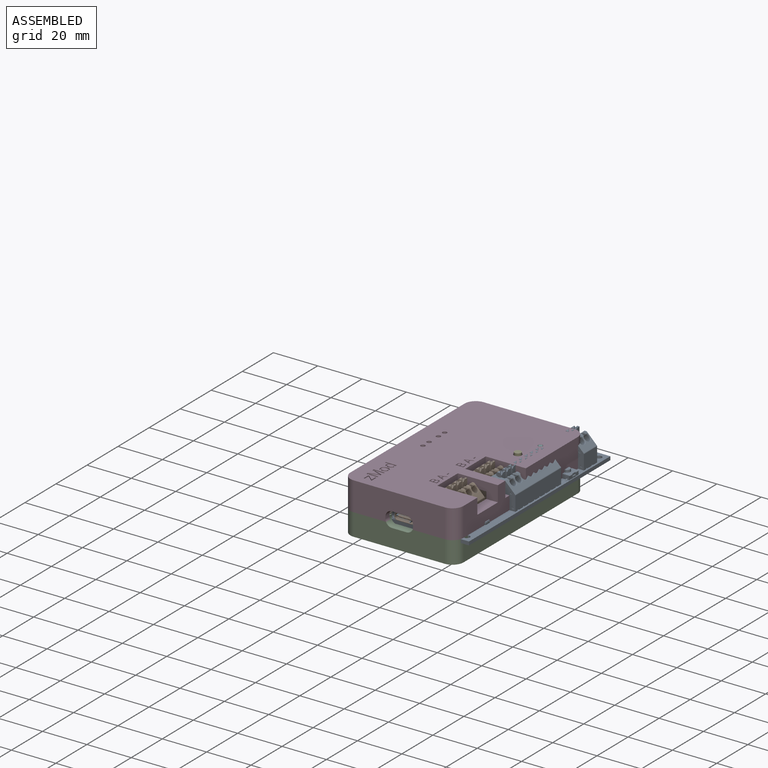
[diagram: assembled view]
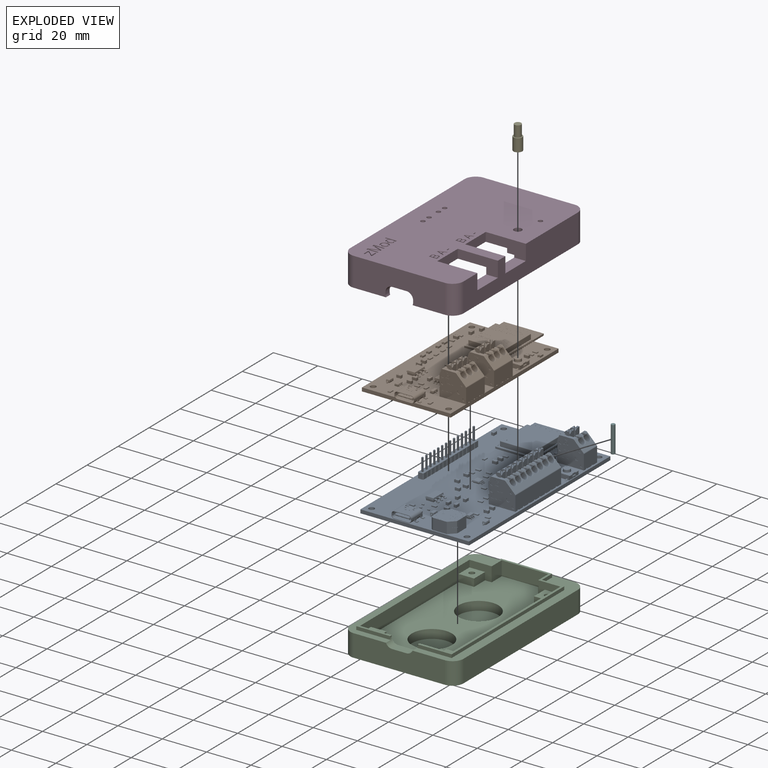
[diagram: exploded view]
GUIDED TOUR — FREECAD ASSEMBLY "zMod_enclosure"

This assembly has 6 components, labeled P0..P5 below (a component is one placed body or linked part; the same part can appear more than once), held together by 0 modeled joints plus 12 derived contact edges. A joint is a constraint between two components; its type names the relative motion it leaves free:
  CONTACT — a derived adjacency edge — the two components touch in the source model (clearance under 2% of the assembly's diagonal); it is measured from the geometry, not a modeled constraint.
Axis/direction vectors are unit vectors and 'through' points are millimeter coordinates, both in the assembly's world frame.

MATES
  1. CONTACT "contact_0_1": P0 <-> P1, contact direction (0.000, 0.000, 1.000) through (63.13, -145.73, 0.00) mm (derived from contact, not a modeled constraint)
  2. CONTACT "contact_0_2": P0 <-> P2, contact direction (0.000, 0.000, -1.000) through (63.48, -112.34, -1.60) mm (derived from contact, not a modeled constraint)
  3. CONTACT "contact_0_3": P0 <-> P3, contact direction (-0.662, -0.718, -0.214) through (97.71, -132.50, 8.99) mm (derived from contact, not a modeled constraint)
  4. CONTACT "contact_0_4": P0 <-> P4, contact direction (0.038, -0.318, 0.947) through (97.99, -131.00, 8.96) mm (derived from contact, not a modeled constraint)
  5. CONTACT "contact_0_5": P0 <-> P5, contact direction (0.662, 0.718, 0.214) through (98.57, -121.11, 12.89) mm (derived from contact, not a modeled constraint)
  6. CONTACT "contact_1_2": P1 <-> P2, contact direction (-0.038, 0.318, -0.947) through (96.72, -175.78, -1.60) mm (derived from contact, not a modeled constraint)
  7. CONTACT "contact_1_3": P1 <-> P3, contact direction (-1.000, 0.000, 0.000) through (59.88, -110.38, 0.12) mm (derived from contact, not a modeled constraint)
  8. CONTACT "contact_1_4": P1 <-> P4, contact direction (0.000, 0.000, 1.000) through (96.61, -132.61, 3.10) mm (derived from contact, not a modeled constraint)
  9. CONTACT "contact_1_5": P1 <-> P5, contact direction (0.000, 0.000, 1.000) through (98.29, -119.21, 0.90) mm (derived from contact, not a modeled constraint)
  10. CONTACT "contact_2_3": P2 <-> P3, contact direction (0.000, 0.000, 1.000) through (54.55, -180.23, 0.00) mm (derived from contact, not a modeled constraint)
  11. CONTACT "contact_3_4": P3 <-> P4, contact direction (0.662, 0.718, 0.214) through (94.91, -129.48, 9.00) mm (derived from contact, not a modeled constraint)
  12. CONTACT "contact_3_5": P3 <-> P5, contact direction (0.662, 0.718, 0.214) through (98.07, -119.17, 13.00) mm (derived from contact, not a modeled constraint)

ASSEMBLY ORDER
  1. P0 — the base component [order heuristic]
  2. P1 — core [order heuristic]
  3. P5 [order verified]
  4. P3 — core [order heuristic]
  5. P4 — core [order heuristic]
  6. P2 — core [order heuristic]
Order-tag legend:
  [order verified] — this step's position reverses a verified removal order: the component was checked to insert without passing through the ones already placed.
  [order heuristic] — the first 5 components form the assembly's core: parts whose collision-free extraction could not be verified, listed in mate-graph order.

Of the 6 components, 4 carry a construction recipe — the FreeCAD feature program (sketches with constraints, then the solid features that consume them) that regenerates the part from scratch, quoted from this document or from the linked companion document it references; the rest are supplied as boundary geometry only. The tour below walks the components in assembly order: each is shown spotlighted twice — in the assembled view, then in the exploded view, where a leader line traces a displaced component back to its assembled socket (components that stay in place when exploded have no leader line; saturated green if recipe-attached, orange if geometry-only; every other component desaturated gray) — followed by its recipe or geometry summary and the mates that hold it.
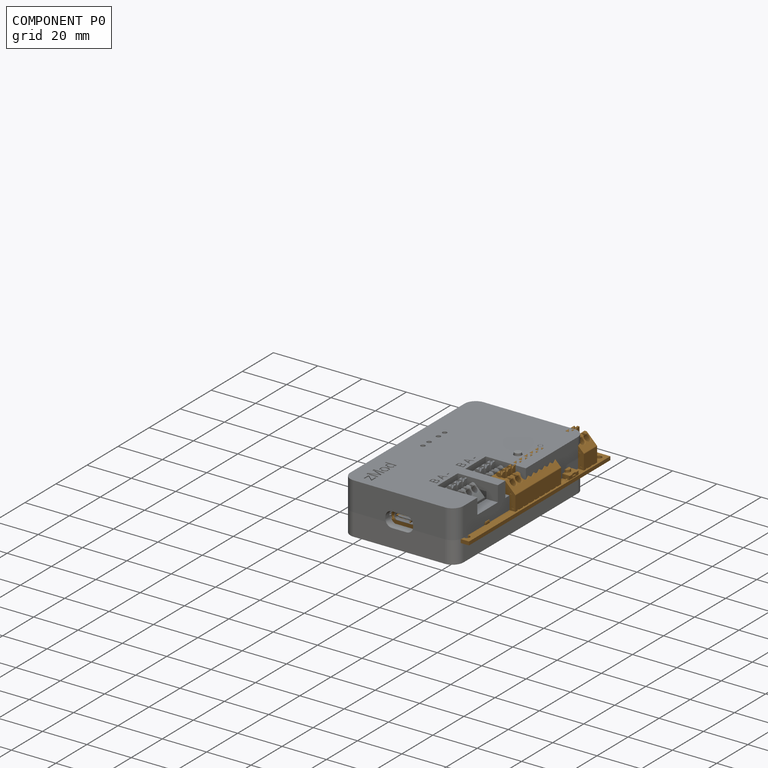
[diagram: component P0 — assembled]
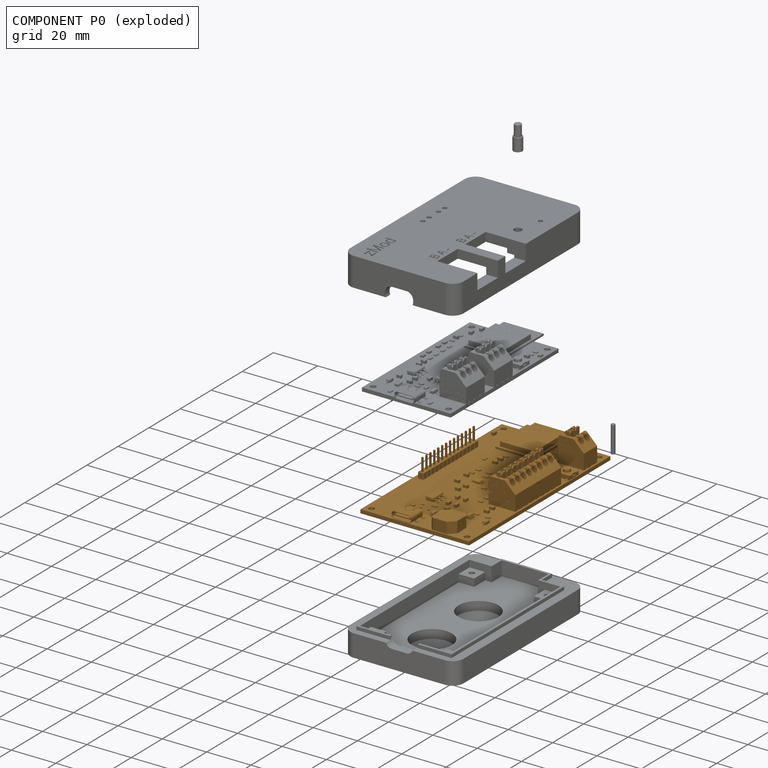
[diagram: component P0 — exploded]
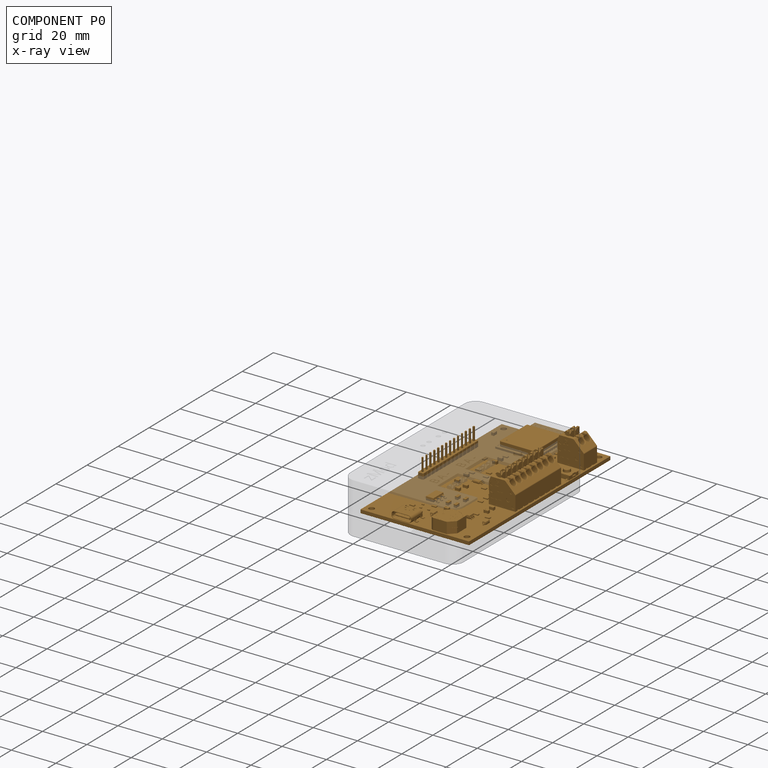
[diagram: component P0 — x-ray view]
COMPONENT P0 — geometry summary ("tank_PCB"; no construction recipe available for this part):
  bounding box: 97.6 x 49.0 x 16.6 mm
  tessellated surface: 175,864 triangles
  volume: 12867 mm^3 (16% of its bounding box)
Held by: resting contact with P1 (derived edge); resting contact with P2 (derived edge); resting contact with P3 (derived edge); resting contact with P4 (derived edge); resting contact with P5 (derived edge).
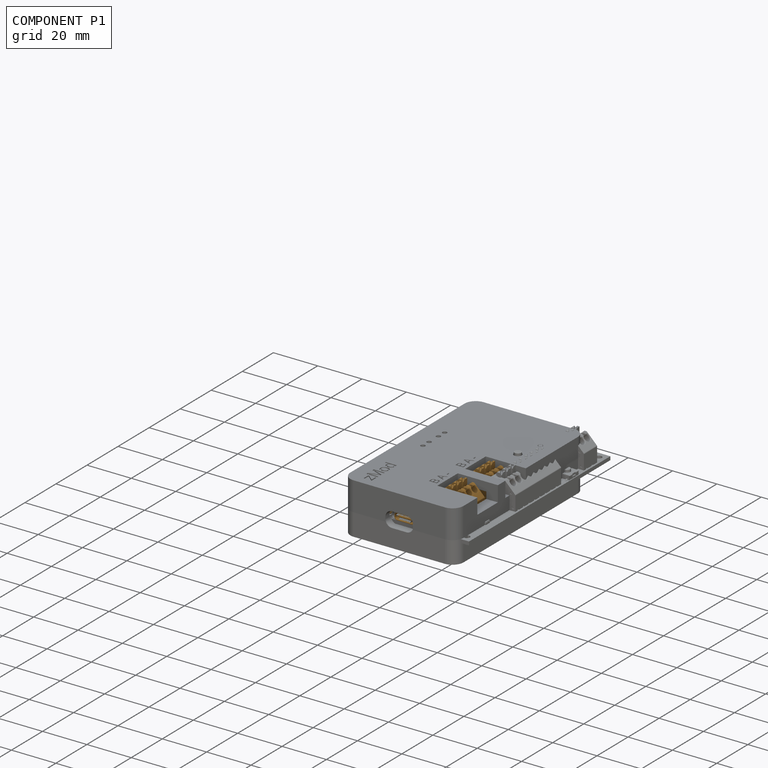
[diagram: component P1 — assembled]
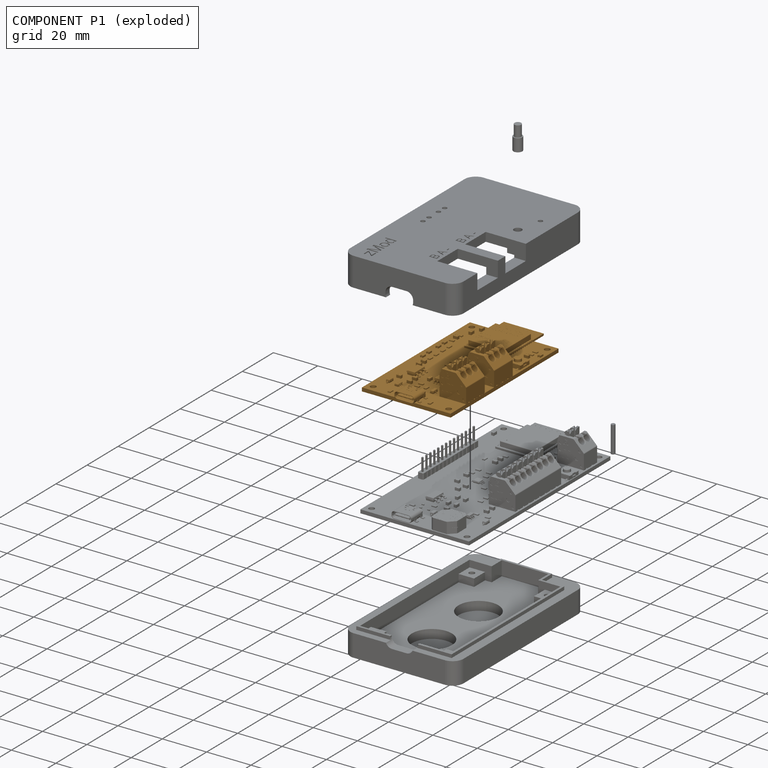
[diagram: component P1 — exploded]
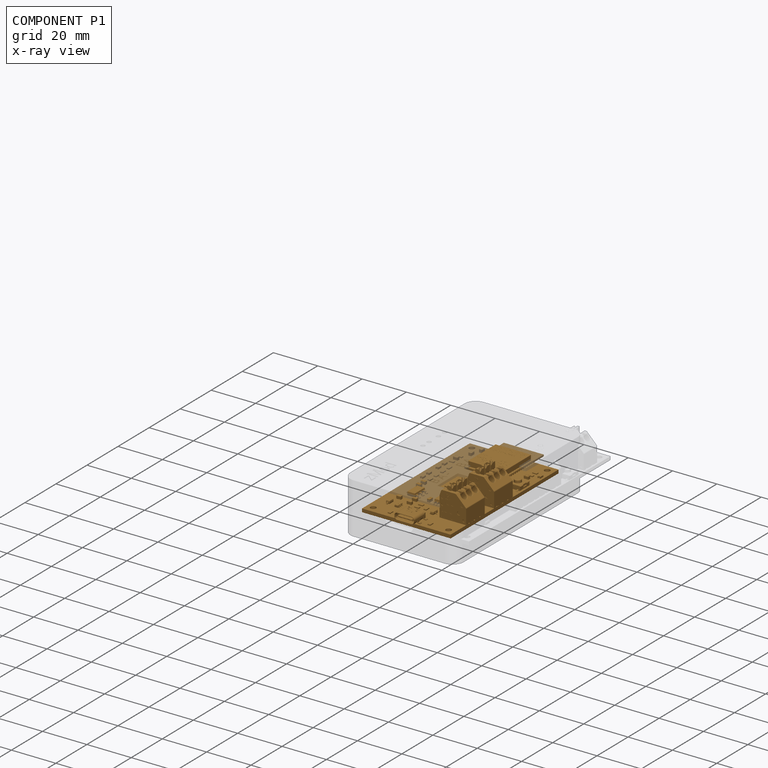
[diagram: component P1 — x-ray view]
COMPONENT P1 — geometry summary ("zVMC_PCB"; no construction recipe available for this part):
  bounding box: 77.0 x 40.0 x 16.6 mm
  tessellated surface: 119,490 triangles
  volume: 8441 mm^3 (17% of its bounding box)
Held by: resting contact with P0 (derived edge); resting contact with P2 (derived edge); resting contact with P3 (derived edge); resting contact with P4 (derived edge); resting contact with P5 (derived edge).
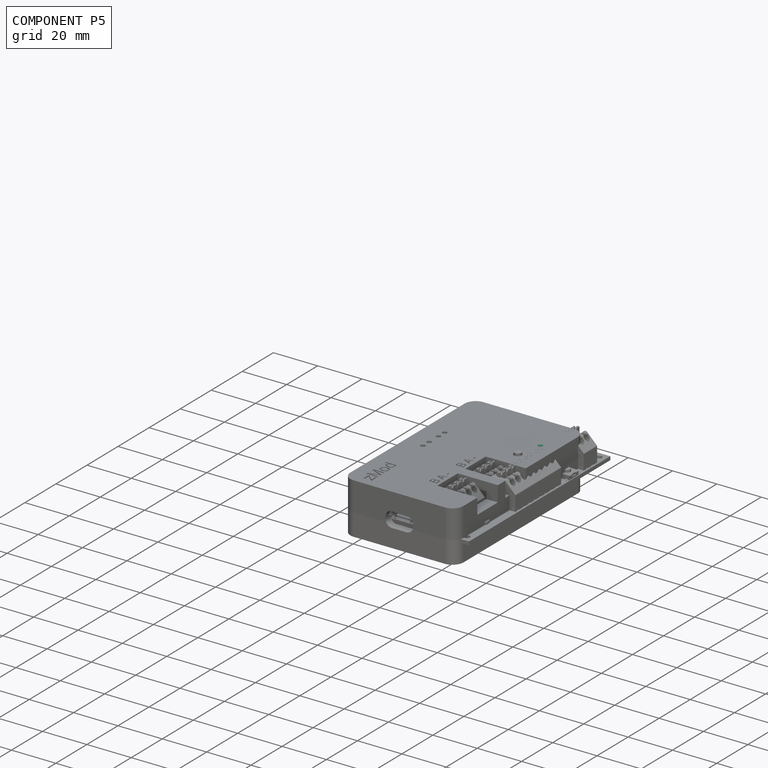
[diagram: component P5 — assembled]
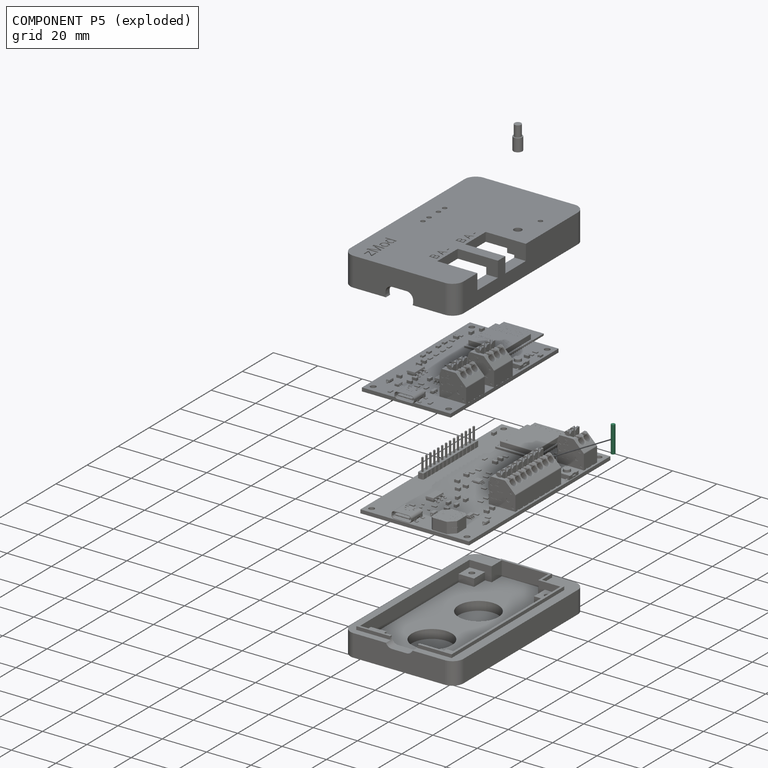
[diagram: component P5 — exploded]
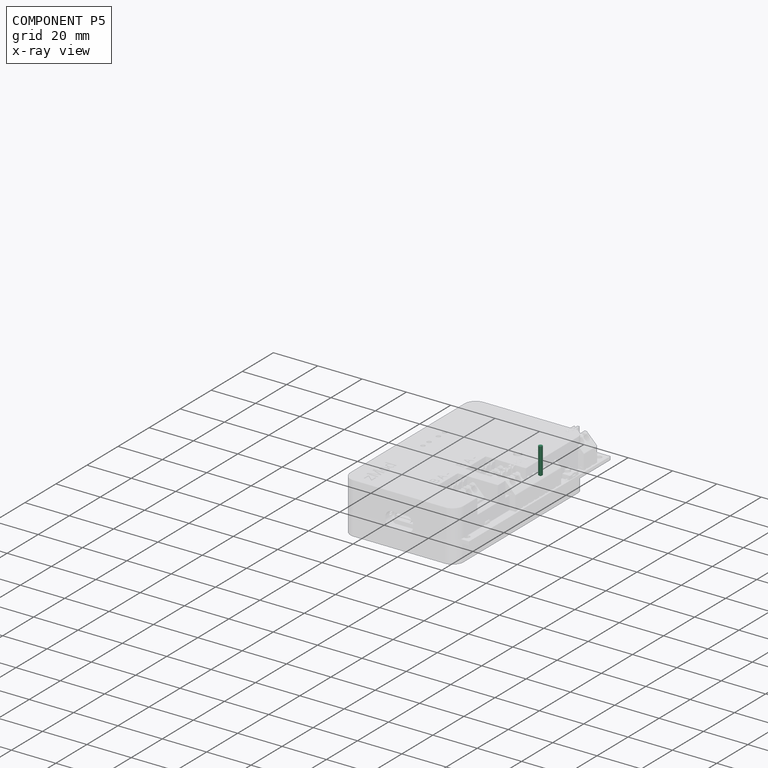
[diagram: component P5 — x-ray view]
COMPONENT P5 — recipe-attached ("LightGuide", modeled in this document).
Held by: resting contact with P0 (derived edge); resting contact with P1 (derived edge); resting contact with P3 (derived edge).
Construction recipe (the document's own serialized feature program — sketch geometry with constraints, then the solid features built on it; lengths are millimeters unless a unit is written):

FEATURE [PartDesign::SubShapeBinder] Binder004
  BindCopyOnChange = 0
  BindMode = 0
  ClaimChildren = false
  Context = -> Body003 [Binder004.]
  Fuse = false
  MakeFace = true
  OffsetFill = false
  OffsetIntersection = false
  OffsetJoinType = 0
  OffsetOpenResult = false
  PartialLoad = false
  Refine = true
  Relative = true
  Support = -> [Body001[Pocket012.Face5]]
  _Version = 2
FEATURE [PartDesign::Plane] DatumPlane003
  AttachmentSupport = -> [Binder004]
  Length = 151.314
  MapMode = 5
  Placement = pos=(0,0,13) rot=(0,0,1;0rad)
  ResizeMode = 0
  Width = 172.814
FEATURE [Sketcher::SketchObject] Sketch025
  ArcFitTolerance = 1e-06
  AttachmentSupport = -> [DatumPlane003]
  ExternalGeometry = -> [Binder004]
  FullyConstrained = true
  MakeInternals = false
  MapMode = 5
  Placement = pos=(0,0,13) rot=(0,0,1;0rad)
  sketch-geometry (1):
    g0: Circle CenterX=98.5 CenterY=-120 CenterZ=0 NormalX=0 NormalY=0 NormalZ=1 AngleXU=0 Radius=0.875
  constraints (2):
    c: Coincident(g0,g-3)
    c: Diameter(g0) = 1.75
FEATURE [PartDesign::Pad] Pad009  label="Guide Length"
  Direction = (0,0,1)
  Length = 12
  Length2 = 10
  Placement = pos=(0,0,13) rot=(0,0,1;0rad)
  Profile = -> Sketch025
  ReferenceAxis = -> Sketch025 [N_Axis]
  Refine = true
  Reversed = true
  Suppressed = false
  Type = 0
FEATURE [PartDesign::Body] Body003  label="LightGuide"
  AllowCompound = false
  Group = -> [Binder004,DatumPlane003,Sketch025,Pad009]
  Origin = -> Origin089
  Tip = -> Pad009
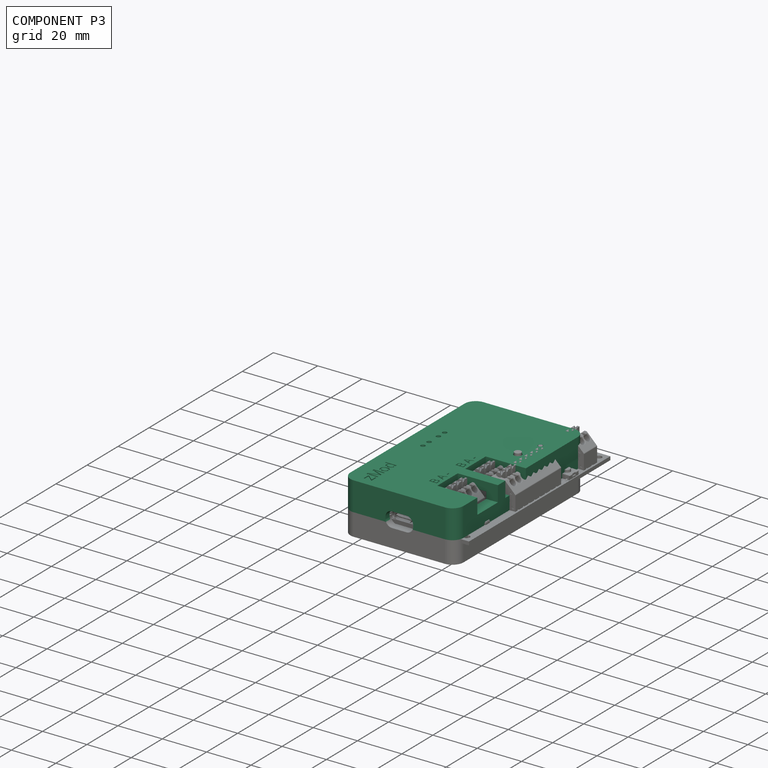
[diagram: component P3 — assembled]
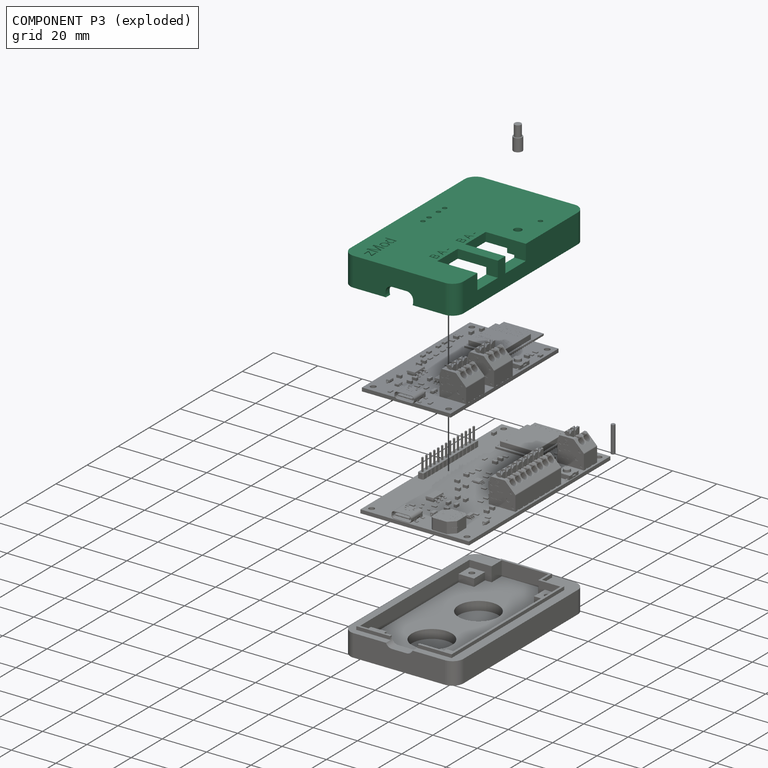
[diagram: component P3 — exploded]
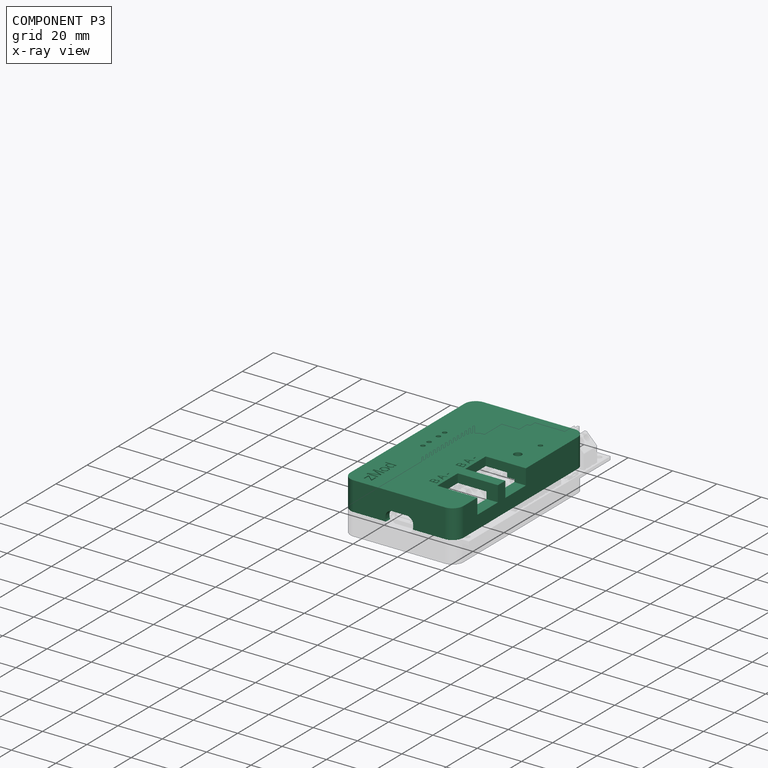
[diagram: component P3 — x-ray view]
COMPONENT P3 — recipe-attached ("Enclosure_Top", modeled in this document).
Held by: resting contact with P0 (derived edge); resting contact with P1 (derived edge); resting contact with P2 (derived edge); resting contact with P4 (derived edge); resting contact with P5 (derived edge).
Construction recipe (the document's own serialized feature program — sketch geometry with constraints, then the solid features built on it; lengths are millimeters unless a unit is written):

FEATURE [PartDesign::SubShapeBinder] Binder  label="TopOfBottomEnclosure"
  BindCopyOnChange = 0
  BindMode = 0
  ClaimChildren = false
  Context = -> Body001 [Binder.]
  Fuse = false
  MakeFace = true
  OffsetFill = false
  OffsetIntersection = false
  OffsetJoinType = 0
  OffsetOpenResult = false
  PartialLoad = false
  Refine = true
  Relative = true
  Support = -> [Body[Pocket006.Face42]]
  _Version = 2
FEATURE [PartDesign::Plane] DatumPlane
  AttachmentSupport = -> [Binder]
  Length = 163.569
  MapMode = 5
  ResizeMode = 0
  Width = 242.569
FEATURE [Sketcher::SketchObject] Sketch006
  ArcFitTolerance = 1e-06
  AttachmentSupport = -> [DatumPlane]
  ExternalGeometry = -> [Binder]
  FullyConstrained = true
  MakeInternals = false
  MapMode = 5
  expr: Constraints[20] = Spreadsheet.Box_Radius
  expr: Constraints[21] = Spreadsheet.Box_Radius
  expr: Constraints[22] = Spreadsheet.Box_Radius
  expr: Constraints[23] = Spreadsheet.Box_Radius
  sketch-geometry (12):
    g0: LineSegment StartX=54.5 StartY=-106 StartZ=0 EndX=54.5 EndY=-179.5 EndZ=0
    g1: LineSegment StartX=59.5 StartY=-184.5 StartZ=0 EndX=100.5 EndY=-184.5 EndZ=0
    g2: LineSegment StartX=105.5 StartY=-179.5 StartZ=0 EndX=105.5 EndY=-106 EndZ=0
    g3: LineSegment StartX=100.5 StartY=-101 StartZ=0 EndX=59.5 EndY=-101 EndZ=0
    g4: ArcOfCircle CenterX=59.5 CenterY=-106 CenterZ=0 NormalX=0 NormalY=0 NormalZ=1 AngleXU=0 Radius=5 StartAngle=1.5708 EndAngle=3.14159
    g5: GeomPoint [constr] X=54.5 Y=-101 Z=0
    g6: ArcOfCircle CenterX=100.5 CenterY=-106 CenterZ=0 NormalX=0 NormalY=0 NormalZ=1 AngleXU=0 Radius=5 StartAngle=1.2e-15 EndAngle=1.5708
    g7: GeomPoint [constr] X=105.5 Y=-101 Z=0
    g8: ArcOfCircle CenterX=100.5 CenterY=-179.5 CenterZ=0 NormalX=0 NormalY=0 NormalZ=1 AngleXU=0 Radius=5 StartAngle=4.71239 EndAngle=6.28319
    g9: GeomPoint [constr] X=105.5 Y=-184.5 Z=0
    g10: ArcOfCircle CenterX=59.5 CenterY=-179.5 CenterZ=0 NormalX=0 NormalY=0 NormalZ=1 AngleXU=0 Radius=5 StartAngle=3.14159 EndAngle=4.71239
    g11: GeomPoint [constr] X=54.5 Y=-184.5 Z=0
  constraints (26):
    c: Vertical(g0)
    c: Vertical(g2)
    c: Horizontal(g1)
    c: Horizontal(g3)
    c: PointOnObject(g5,g3)
    c: PointOnObject(g5,g0)
    c: Tangent(g3,g4) = -1.5708
    c: Tangent(g0,g4) = -1.5708
    c: PointOnObject(g7,g3)
    c: PointOnObject(g7,g2)
    c: Tangent(g3,g6) = -1.5708
    c: Tangent(g2,g6) = -1.5708
    c: PointOnObject(g9,g2)
    c: PointOnObject(g9,g1)
    c: Tangent(g2,g8) = -1.5708
    c: Tangent(g1,g8) = -1.5708
    c: PointOnObject(g11,g0)
    c: PointOnObject(g11,g1)
    c: Tangent(g0,g10) = -1.5708
    c: Tangent(g1,g10) = -1.5708
    c: Radius(g4) = 5
    c: Radius(g6) = 5
    c: Radius(g8) = 5
    c: Radius(g10) = 5
    c: Coincident(g0,g-3)
    c: Coincident(g2,g-5)
FEATURE [PartDesign::Pad] Pad002  label="MainExtrusion"
  Direction = (0,0,1)
  Length = 13
  Length2 = 10
  Profile = -> Sketch006
  ReferenceAxis = -> Sketch006 [N_Axis]
  Refine = true
  Suppressed = false
  Type = 0
FEATURE [Part::Part2DObjectPython] ShapeString  label="zTank"  # Draft 2D object (typed FeaturePython)
  FontFile = <path>
  Fuse = false
  Justification = 6
  JustificationReference = 0
  KeepLeftMargin = false
  MakeFace = true
  ObliqueAngle = 0
  Placement = pos=(65,-181,13) rot=(0,0,1;1.5708rad)
  ScaleToSize = true
  Size = 5
  String = zMod
  Tracking = 0
FEATURE [Sketcher::SketchObject] Sketch020
  ArcFitTolerance = 1e-06
  AttachmentSupport = -> [Pad002]
  ExternalGeometry = -> [Binder]
  FullyConstrained = true
  MakeInternals = false
  MapMode = 5
  Placement = pos=(0,0,0) rot=(1,0,0;3.14159rad)
  expr: Constraints[16] = Spreadsheet.Gap_top_bottom
  expr: Constraints[17] = Spreadsheet.Gap_top_bottom
  expr: Constraints[18] = Spreadsheet.Gap_top_bottom
  expr: Constraints[19] = Spreadsheet.Gap_top_bottom
  expr: Constraints[20] = Spreadsheet.Gap_top_bottom
  expr: Constraints[21] = Spreadsheet.Gap_top_bottom
  expr: Constraints[22] = Spreadsheet.Gap_top_bottom
  expr: Constraints[23] = Spreadsheet.Gap_top_bottom
  sketch-geometry (8):
    g0: LineSegment StartX=58.25 StartY=181.75 StartZ=0 EndX=101.75 EndY=181.75 EndZ=0
    g1: LineSegment StartX=101.75 StartY=181.75 StartZ=0 EndX=101.75 EndY=108.75 EndZ=0
    g2: LineSegment StartX=101.75 StartY=108.75 StartZ=0 EndX=91.75 EndY=108.75 EndZ=0
    g3: LineSegment StartX=91.75 StartY=108.75 StartZ=0 EndX=91.75 EndY=102.25 EndZ=0
    g4: LineSegment StartX=91.75 StartY=102.25 StartZ=0 EndX=68.25 EndY=102.25 EndZ=0
    g5: LineSegment StartX=68.25 StartY=102.25 StartZ=0 EndX=68.25 EndY=108.75 EndZ=0
    g6: LineSegment StartX=68.25 StartY=108.75 StartZ=0 EndX=58.25 EndY=108.75 EndZ=0
    g7: LineSegment StartX=58.25 StartY=108.75 StartZ=0 EndX=58.25 EndY=181.75 EndZ=0
  constraints (24):
    c: Horizontal(g0)
    c: Coincident(g0,g1)
    c: Vertical(g1)
    c: Coincident(g1,g2)
    c: Horizontal(g2)
    c: Coincident(g2,g3)
    c: Vertical(g3)
    c: Coincident(g3,g4)
    c: Horizontal(g4)
    c: Coincident(g4,g5)
    c: Vertical(g5)
    c: Coincident(g5,g6)
    c: Horizontal(g6)
    c: Coincident(g6,g7)
    c: Coincident(g7,g0)
    c: Vertical(g7)
    c: Distance(g7,g-4) = 0.25
    c: Distance(g0,g-3) = 0.25
    c: Distance(g1,g-10) = 0.25
    c: Distance(g-9,g2) = 0.25
    c: Distance(g6,g-5) = 0.25
    c: Distance(g3,g-8) = 0.25
    c: Distance(g-6,g4) = 0.25
    c: Distance(g5,g-7) = 0.25
FEATURE [PartDesign::Pocket] Pocket009  label="Recess"
  BaseFeature = -> Pad002
  Direction = (0,0,1)
  Length = 3
  Length2 = 5
  Profile = -> Sketch020
  ReferenceAxis = -> Sketch020 [N_Axis]
  Refine = true
  Suppressed = false
  Type = 0
FEATURE [Sketcher::SketchObject] Sketch008
  ArcFitTolerance = 1e-06
  AttachmentSupport = -> [Binder]
  ExternalGeometry = -> [Pocket009]
  FullyConstrained = true
  MakeInternals = false
  MapMode = 5
  sketch-geometry (8):
    g0: LineSegment StartX=59.75 StartY=-110.25 StartZ=0 EndX=59.75 EndY=-180.25 EndZ=0
    g1: LineSegment StartX=59.75 StartY=-180.25 StartZ=0 EndX=100.25 EndY=-180.25 EndZ=0
    g2: LineSegment StartX=100.25 StartY=-180.25 StartZ=0 EndX=100.25 EndY=-110.25 EndZ=0
    g3: LineSegment StartX=100.25 StartY=-110.25 StartZ=0 EndX=90.5 EndY=-110.25 EndZ=0
    g4: LineSegment StartX=90.5 StartY=-110.25 StartZ=0 EndX=90.5 EndY=-103.25 EndZ=0
    g5: LineSegment StartX=90.5 StartY=-103.25 StartZ=0 EndX=69.5 EndY=-103.25 EndZ=0
    g6: LineSegment StartX=69.5 StartY=-103.25 StartZ=0 EndX=69.5 EndY=-110.25 EndZ=0
    g7: LineSegment StartX=69.5 StartY=-110.25 StartZ=0 EndX=59.75 EndY=-110.25 EndZ=0
  constraints (24):
    c: Vertical(g0)
    c: Coincident(g0,g1)
    c: Horizontal(g1)
    c: Coincident(g1,g2)
    c: Vertical(g2)
    c: Coincident(g2,g3)
    c: Horizontal(g3)
    c: Coincident(g3,g4)
    c: Vertical(g4)
    c: Coincident(g4,g5)
    c: Horizontal(g5)
    c: Coincident(g5,g6)
    c: Vertical(g6)
    c: Coincident(g6,g7)
    c: Coincident(g7,g0)
    c: Horizontal(g7)
    c: Distance(g4,g4) = 7
    c: Distance(g-3,g0) = 5.25
    c: Distance(g1,g-4) = 4.25
    c: Distance(g-5,g2) = 5.25
    c: Distance(g-6,g7) = 9.25
    c: Distance(g-3,g6) = 15
    c: Distance(g-5,g4) = 15
    c: Distance(g3,g-6) = 9.25
FEATURE [PartDesign::Pocket] Pocket003  label="RecessFull"
  BaseFeature = -> Pocket009
  Direction = (0,0,-1)
  Length = 9
  Length2 = 5
  Profile = -> Sketch008
  ReferenceAxis = -> Sketch008 [N_Axis]
  Refine = true
  Reversed = true
  Suppressed = false
  Type = 0
FEATURE [Sketcher::SketchObject] Sketch009
  ArcFitTolerance = 1e-06
  AttachmentSupport = -> [Pocket003]
  ExternalGeometry = -> [Pocket003]
  FullyConstrained = true
  MakeInternals = false
  MapMode = 5
  Placement = pos=(0,0,9) rot=(1,0,0;3.14159rad)
  expr: Constraints[32] = Spreadsheet.Screw_foot_size - Spreadsheet.Gap_top_bottom
  expr: Constraints[33] = Spreadsheet.Screw_foot_size - Spreadsheet.Gap_top_bottom
  expr: Constraints[34] = Spreadsheet.Screw_foot_size - Spreadsheet.Gap_top_bottom
  expr: Constraints[35] = Spreadsheet.Screw_foot_size - Spreadsheet.Gap_top_bottom
  expr: Constraints[36] = Spreadsheet.Screw_foot_size - Spreadsheet.Gap_top_bottom
  expr: Constraints[37] = Spreadsheet.Screw_foot_size - Spreadsheet.Gap_top_bottom
  expr: Constraints[38] = Spreadsheet.Screw_foot_size - Spreadsheet.Gap_top_bottom
  expr: Constraints[39] = Spreadsheet.Screw_foot_size - Spreadsheet.Gap_top_bottom
  sketch-geometry (16):
    g0: LineSegment StartX=59.75 StartY=110.25 StartZ=0 EndX=66.5 EndY=110.25 EndZ=0
    g1: LineSegment StartX=66.5 StartY=110.25 StartZ=0 EndX=66.5 EndY=117 EndZ=0
    g2: LineSegment StartX=66.5 StartY=117 StartZ=0 EndX=59.75 EndY=117 EndZ=0
    g3: LineSegment StartX=59.75 StartY=117 StartZ=0 EndX=59.75 EndY=110.25 EndZ=0
    g4: LineSegment StartX=100.25 StartY=110.25 StartZ=0 EndX=100.25 EndY=117 EndZ=0
    g5: LineSegment StartX=100.25 StartY=117 StartZ=0 EndX=93.5 EndY=117 EndZ=0
    g6: LineSegment StartX=93.5 StartY=117 StartZ=0 EndX=93.5 EndY=110.25 EndZ=0
    g7: LineSegment StartX=93.5 StartY=110.25 StartZ=0 EndX=100.25 EndY=110.25 EndZ=0
    g8: LineSegment StartX=59.75 StartY=180.25 StartZ=0 EndX=59.75 EndY=173.5 EndZ=0
    g9: LineSegment StartX=59.75 StartY=173.5 StartZ=0 EndX=66.5 EndY=173.5 EndZ=0
    g10: LineSegment StartX=66.5 StartY=173.5 StartZ=0 EndX=66.5 EndY=180.25 EndZ=0
    g11: LineSegment StartX=66.5 StartY=180.25 StartZ=0 EndX=59.75 EndY=180.25 EndZ=0
    g12: LineSegment StartX=100.25 StartY=180.25 StartZ=0 EndX=93.5 EndY=180.25 EndZ=0
    g13: LineSegment StartX=93.5 StartY=180.25 StartZ=0 EndX=93.5 EndY=173.5 EndZ=0
    g14: LineSegment StartX=93.5 StartY=173.5 StartZ=0 EndX=100.25 EndY=173.5 EndZ=0
    g15: LineSegment StartX=100.25 StartY=173.5 StartZ=0 EndX=100.25 EndY=180.25 EndZ=0
  constraints (44):
    c: Coincident(g0,g1)
    c: Coincident(g1,g2)
    c: Coincident(g2,g3)
    c: Coincident(g3,g0)
    c: Horizontal(g0)
    c: Horizontal(g2)
    c: Vertical(g1)
    c: Vertical(g3)
    c: Coincident(g4,g5)
    c: Coincident(g5,g6)
    c: Coincident(g6,g7)
    c: Coincident(g7,g4)
    c: Vertical(g4)
    c: Vertical(g6)
    c: Horizontal(g5)
    c: Horizontal(g7)
    c: Coincident(g8,g9)
    c: Coincident(g9,g10)
    c: Coincident(g10,g11)
    c: Coincident(g11,g8)
    c: Vertical(g8)
    c: Vertical(g10)
    c: Horizontal(g9)
    c: Horizontal(g11)
    c: Coincident(g12,g13)
    c: Coincident(g13,g14)
    c: Coincident(g14,g15)
    c: Coincident(g15,g12)
    c: Horizontal(g12)
    c: Horizontal(g14)
    c: Vertical(g13)
    c: Vertical(g15)
    c: DistanceY(g10,g10) = 6.75
    c: DistanceX(g9,g9) = 6.75
    c: DistanceY(g13,g13) = 6.75
    c: DistanceX(g14,g14) = 6.75
    c: DistanceX(g5,g5) = 6.75
    c: DistanceY(g6,g6) = 6.75
    c: Distance(g2,g2) = 6.75
    c: DistanceY(g1,g1) = 6.75
    c: Coincident(g8,g-3)
    c: Coincident(g12,g-4)
    c: Coincident(g4,g-4)
    c: Coincident(g0,g-3)
FEATURE [PartDesign::Pad] Pad003  label="Protusion Screw"
  BaseFeature = -> Pocket003
  Direction = (0,0,-1)
  Length = 8.75
  Length2 = 10
  Profile = -> Sketch009
  ReferenceAxis = -> Sketch009 [N_Axis]
  Refine = true
  Suppressed = false
  Type = 0
FEATURE [Sketcher::SketchObject] Sketch010
  ArcFitTolerance = 1e-06
  AttachmentSupport = -> [Pad003]
  ExternalGeometry = -> [Pad003]
  FullyConstrained = true
  MakeInternals = false
  MapMode = 5
  Placement = pos=(0,0,0.25) rot=(1,0,0;3.14159rad)
  sketch-geometry (4):
    g0: Circle CenterX=97 CenterY=113.5 CenterZ=0 NormalX=0 NormalY=0 NormalZ=1 AngleXU=0 Radius=1.575
    g1: Circle CenterX=63 CenterY=113.5 CenterZ=0 NormalX=0 NormalY=0 NormalZ=1 AngleXU=0 Radius=1.575
    g2: Circle CenterX=63 CenterY=177 CenterZ=0 NormalX=0 NormalY=0 NormalZ=1 AngleXU=0 Radius=1.575
    g3: Circle CenterX=97 CenterY=177 CenterZ=0 NormalX=0 NormalY=0 NormalZ=1 AngleXU=0 Radius=1.575
  constraints (12):
    c: Distance(g0,g-4) = 3.5
    c: Distance(g0,g-3) = 3.5
    c: Distance(g1,g-5) = 3.5
    c: Distance(g1,g-6) = 3.5
    c: Distance(g2,g-7) = 3.5
    c: Distance(g2,g-8) = 3.5
    c: Distance(g3,g-9) = 3.5
    c: Distance(g3,g-10) = 3.5
    c: Diameter(g2) = 3.15
    c: Diameter(g3) = 3.15
    c: Diameter(g1) = 3.15
    c: Diameter(g0) = 3.15
FEATURE [PartDesign::Hole] Hole001  label="HoleScrew"
  BaseFeature = -> Pad003
  CustomThreadClearance = 0
  Depth = 10
  DepthType = 0
  Diameter = 3.15
  DrillForDepth = false
  DrillPoint = 0
  DrillPointAngle = 118
  HoleCutCountersinkAngle = 21
  HoleCutCustomValues = false
  HoleCutDepth = 0
  HoleCutDiameter = 3.7
  HoleCutType = 2
  ModelThread = false
  Profile = -> Sketch010
  Refine = true
  Suppressed = false
  Tapered = false
  TaperedAngle = 90
  ThreadClass = 0
  ThreadDepth = 10
  ThreadDepthType = 0
  ThreadDirection = 0
  ThreadFit = 0
  ThreadSize = 0
  ThreadType = 0
  Threaded = false
  UseCustomThreadClearance = false
FEATURE [Sketcher::SketchObject] Sketch011
  ArcFitTolerance = 1e-06
  AttachmentSupport = -> [Hole001]
  ExternalGeometry = -> [Hole001]
  FullyConstrained = true
  MakeInternals = false
  MapMode = 5
  Placement = pos=(0,0,13) rot=(0,0,1;0rad)
  sketch-geometry (1):
    g0: Circle CenterX=96 CenterY=-131 CenterZ=0 NormalX=0 NormalY=0 NormalZ=1 AngleXU=0 Radius=1.75
  constraints (3):
    c: Distance(g0,g-4) = 30
    c: Diameter(g0) = 3.5
    c: Distance(g0,g-3) = 9.5
FEATURE [Sketcher::SketchObject] Sketch012
  ArcFitTolerance = 1e-06
  AttachmentSupport = -> [Hole001]
  ExternalGeometry = -> [Hole001]
  FullyConstrained = true
  MakeInternals = false
  MapMode = 5
  Placement = pos=(0,0,13) rot=(0,0,1;0rad)
  sketch-geometry (5):
    g0: Circle CenterX=98.5 CenterY=-120 CenterZ=0 NormalX=0 NormalY=0 NormalZ=1 AngleXU=0 Radius=1
    g1: Circle CenterX=63 CenterY=-141 CenterZ=0 NormalX=0 NormalY=0 NormalZ=1 AngleXU=0 Radius=1
    g2: Circle CenterX=63 CenterY=-145 CenterZ=0 NormalX=0 NormalY=0 NormalZ=1 AngleXU=0 Radius=1
    g3: Circle CenterX=63 CenterY=-135 CenterZ=0 NormalX=0 NormalY=0 NormalZ=1 AngleXU=0 Radius=1
    g4: Circle CenterX=63 CenterY=-131 CenterZ=0 NormalX=0 NormalY=0 NormalZ=1 AngleXU=0 Radius=1
  constraints (15):
    c: Diameter(g0) = 2
    c: Distance(g0,g-3) = 19
    c: Distance(g0,g-4) = 7
    c: Diameter(g1) = 2
    c: Diameter(g2) = 2
    c: Diameter(g3) = 2
    c: Diameter(g4) = 2
    c: Vertical(g4,g3)
    c: Vertical(g1,g3)
    c: Vertical(g2,g1)
    c: Distance(g4,g-4) = 42.5
    c: DistanceY(g2,g1) = 4
    c: DistanceY(g1,g3) = 6
    c: DistanceY(g3,g4) = 4
    c: Distance(g4,g-3) = 30
FEATURE [PartDesign::Hole] Hole002  label="HoleButton"
  BaseFeature = -> Hole001
  CustomThreadClearance = 0
  Depth = 245.694
  DepthType = 1
  Diameter = 3.5
  DrillForDepth = false
  DrillPoint = 1
  DrillPointAngle = 118
  HoleCutCountersinkAngle = 90
  HoleCutCustomValues = false
  HoleCutDepth = 0
  HoleCutDiameter = 6.1
  HoleCutType = 0
  ModelThread = false
  Profile = -> Sketch011
  Refine = true
  Suppressed = false
  Tapered = false
  TaperedAngle = 90
  ThreadClass = 0
  ThreadDepth = 245.694
  ThreadDepthType = 0
  ThreadDirection = 0
  ThreadFit = 0
  ThreadSize = 0
  ThreadType = 0
  Threaded = false
  UseCustomThreadClearance = false
FEATURE [PartDesign::Hole] Hole003  label="Hole Led"
  BaseFeature = -> Hole002
  CustomThreadClearance = 0
  Depth = 245.694
  DepthType = 1
  Diameter = 2
  DrillForDepth = false
  DrillPoint = 1
  DrillPointAngle = 118
  HoleCutCountersinkAngle = 90
  HoleCutCustomValues = false
  HoleCutDepth = 0
  HoleCutDiameter = 6.1
  HoleCutType = 0
  ModelThread = false
  Profile = -> Sketch012
  Refine = true
  Suppressed = false
  Tapered = false
  TaperedAngle = 90
  ThreadClass = 0
  ThreadDepth = 245.694
  ThreadDepthType = 0
  ThreadDirection = 0
  ThreadFit = 0
  ThreadSize = 0
  ThreadType = 0
  Threaded = false
  UseCustomThreadClearance = false
FEATURE [Sketcher::SketchObject] Sketch013
  ArcFitTolerance = 1e-06
  AttachmentSupport = -> [Hole003]
  ExternalGeometry = -> [Hole003]
  FullyConstrained = true
  MakeInternals = false
  MapMode = 5
  Placement = pos=(0,0,13) rot=(0,0,1;0rad)
  sketch-geometry (8):
    g0: LineSegment StartX=87.4 StartY=-157.4 StartZ=0 EndX=87.4 EndY=-170.6 EndZ=0
    g1: LineSegment StartX=87.4 StartY=-170.6 StartZ=0 EndX=110.5 EndY=-170.6 EndZ=0
    g2: LineSegment StartX=110.5 StartY=-170.6 StartZ=0 EndX=110.5 EndY=-157.4 EndZ=0
    g3: LineSegment StartX=110.5 StartY=-157.4 StartZ=0 EndX=87.4 EndY=-157.4 EndZ=0
    g4: LineSegment StartX=87.4 StartY=-139.4 StartZ=0 EndX=87.4 EndY=-152.6 EndZ=0
    g5: LineSegment StartX=87.4 StartY=-152.6 StartZ=0 EndX=110.5 EndY=-152.6 EndZ=0
    g6: LineSegment StartX=110.5 StartY=-152.6 StartZ=0 EndX=110.5 EndY=-139.4 EndZ=0
    g7: LineSegment StartX=110.5 StartY=-139.4 StartZ=0 EndX=87.4 EndY=-139.4 EndZ=0
  constraints (24):
    c: Coincident(g0,g1)
    c: Coincident(g1,g2)
    c: Coincident(g2,g3)
    c: Coincident(g3,g0)
    c: Vertical(g0)
    c: Vertical(g2)
    c: Horizontal(g1)
    c: Horizontal(g3)
    c: Coincident(g4,g5)
    c: Coincident(g5,g6)
    c: Coincident(g6,g7)
    c: Coincident(g7,g4)
    c: Vertical(g4)
    c: Vertical(g6)
    c: Horizontal(g5)
    c: Horizontal(g7)
    c: Distance(g2,g-3) = 5
    c: Distance(g6,g-3) = 5
    c: DistanceY(g2,g2) = 13.2
    c: DistanceY(g6,g6) = 13.2
    c: Distance(g-3,g4) = 18.1
    c: Distance(g-3,g0) = 18.1
    c: Distance(g3,g5) = 4.8
    c: Distance(g-4,g7) = 38.4
FEATURE [PartDesign::Pocket] Pocket004  label="Recess connectors"
  BaseFeature = -> Hole003
  Direction = (0,0,-1)
  Length = 7
  Length2 = 5
  Profile = -> Sketch013
  ReferenceAxis = -> Sketch013 [N_Axis]
  Refine = true
  Suppressed = false
  Type = 0
FEATURE [Sketcher::SketchObject] Sketch014
  ArcFitTolerance = 1e-06
  AttachmentSupport = -> [Pocket004]
  ExternalGeometry = -> [Pocket004,Sketch006]
  FullyConstrained = true
  MakeInternals = false
  MapMode = 5
  Placement = pos=(0,-184.5,0) rot=(1,0,0;1.5708rad)
  sketch-geometry (12):
    g0: LineSegment StartX=76.75 StartY=-1.8 StartZ=0 EndX=83.25 EndY=-1.8 EndZ=0
    g1: LineSegment StartX=86.25 StartY=1.2 StartZ=0 EndX=86.25 EndY=2 EndZ=0
    g2: LineSegment StartX=83.25 StartY=5 StartZ=0 EndX=76.75 EndY=5 EndZ=0
    g3: LineSegment StartX=73.75 StartY=2 StartZ=0 EndX=73.75 EndY=1.2 EndZ=0
    g4: ArcOfCircle CenterX=76.75 CenterY=2 CenterZ=0 NormalX=0 NormalY=0 NormalZ=1 AngleXU=0 Radius=3 StartAngle=1.5708 EndAngle=3.14159
    g5: GeomPoint [constr] X=73.75 Y=5 Z=0
    g6: ArcOfCircle CenterX=83.25 CenterY=2 CenterZ=0 NormalX=0 NormalY=0 NormalZ=1 AngleXU=0 Radius=3 StartAngle=0 EndAngle=1.5708
    g7: GeomPoint [constr] X=86.25 Y=5 Z=0
    g8: ArcOfCircle CenterX=76.75 CenterY=1.2 CenterZ=0 NormalX=0 NormalY=0 NormalZ=1 AngleXU=0 Radius=3 StartAngle=3.14159 EndAngle=4.71239
    g9: GeomPoint [constr] X=73.75 Y=-1.8 Z=0
    g10: ArcOfCircle CenterX=83.25 CenterY=1.2 CenterZ=0 NormalX=0 NormalY=0 NormalZ=1 AngleXU=0 Radius=3 StartAngle=4.71239 EndAngle=6.28319
    g11: GeomPoint [constr] X=86.25 Y=-1.8 Z=0
  constraints (28):
    c: Horizontal(g0)
    c: Horizontal(g2)
    c: Vertical(g1)
    c: Vertical(g3)
    c: DistanceX(g5,g7) = 12.5
    c: Distance(g-3,g3) = 19.25
    c: Distance(g-4,g2) = 5
    c: Distance(g-4,g0) = 1.8
    c: PointOnObject(g5,g3)
    c: PointOnObject(g5,g2)
    c: Tangent(g3,g4) = -1.5708
    c: Tangent(g2,g4) = -1.5708
    c: PointOnObject(g7,g1)
    c: PointOnObject(g7,g2)
    c: Tangent(g1,g6) = -1.5708
    c: Tangent(g2,g6) = -1.5708
    c: Radius(g4) = 3
    c: Radius(g6) = 3
    c: PointOnObject(g9,g0)
    c: PointOnObject(g9,g3)
    c: Tangent(g0,g8) = -1.5708
    c: Tangent(g3,g8) = -1.5708
    c: PointOnObject(g11,g1)
    c: PointOnObject(g11,g0)
    c: Tangent(g1,g10) = -1.5708
    c: Tangent(g0,g10) = -1.5708
    c: Radius(g8) = 3
    c: Radius(g10) = 3
FEATURE [PartDesign::Pocket] Pocket005  label="Recess USB"
  BaseFeature = -> Pocket004
  Direction = (0,1,-2e-16)
  Length = 10
  Length2 = 5
  Profile = -> Sketch014
  ReferenceAxis = -> Sketch014 [N_Axis]
  Refine = true
  Suppressed = false
  Type = 0
FEATURE [Sketcher::SketchObject] Sketch016
  ArcFitTolerance = 1e-06
  AttachmentSupport = -> [Pocket005]
  ExternalGeometry = -> [Pocket005]
  FullyConstrained = true
  MakeInternals = false
  MapMode = 5
  Placement = pos=(0,0,9) rot=(1,0,0;3.14159rad)
  sketch-geometry (4):
    g0: LineSegment StartX=93.25 StartY=128 StartZ=0 EndX=100.25 EndY=128 EndZ=0
    g1: LineSegment StartX=100.25 StartY=128 StartZ=0 EndX=100.25 EndY=134 EndZ=0
    g2: LineSegment StartX=100.25 StartY=134 StartZ=0 EndX=93.25 EndY=134 EndZ=0
    g3: LineSegment StartX=93.25 StartY=134 StartZ=0 EndX=93.25 EndY=128 EndZ=0
  constraints (12):
    c: Coincident(g0,g1)
    c: Coincident(g1,g2)
    c: Coincident(g2,g3)
    c: Coincident(g3,g0)
    c: Horizontal(g0)
    c: Horizontal(g2)
    c: Vertical(g1)
    c: Vertical(g3)
    c: PointOnObject(g1,g-4)
    c: DistanceX(g2,g2) = 7
    c: Distance(g-3,g2) = 3
    c: Distance(g-3,g0) = 3
FEATURE [PartDesign::Pad] Pad004  label="Protusion Button"
  BaseFeature = -> Pocket005
  Direction = (0,0,-1)
  Length = 5
  Length2 = 10
  Profile = -> Sketch016
  ReferenceAxis = -> Sketch016 [N_Axis]
  Refine = true
  Suppressed = false
  Type = 0
FEATURE [Sketcher::SketchObject] Sketch017
  ArcFitTolerance = 1e-06
  AttachmentSupport = -> [Pad004]
  ExternalGeometry = -> [Pad004]
  FullyConstrained = true
  MakeInternals = false
  MapMode = 5
  Placement = pos=(0,0,4) rot=(1,0,0;3.14159rad)
  sketch-geometry (1):
    g0: Circle CenterX=96 CenterY=131 CenterZ=0 NormalX=0 NormalY=0 NormalZ=1 AngleXU=0 Radius=2.25
  constraints (2):
    c: Diameter(g0) = 4.5
    c: Coincident(g0,g-3)
FEATURE [PartDesign::Pocket] Pocket007  label="RecessButtonLock"
  BaseFeature = -> Pad004
  Direction = (0,0,1)
  Length = 5
  Length2 = 5
  Profile = -> Sketch017
  ReferenceAxis = -> Sketch017 [N_Axis]
  Refine = true
  Suppressed = false
  Type = 2
FEATURE [PartDesign::Pocket] Pocket008  label="Gravure"
  BaseFeature = -> Pocket007
  Direction = (0,0,-1)
  Length = 0.5
  Length2 = 5
  Profile = -> ShapeString
  ReferenceAxis = -> ShapeString [N_Axis]
  Refine = true
  Suppressed = false
  Type = 0
FEATURE [Part::Part2DObjectPython] ShapeString001  label="Connect"  # Draft 2D object (typed FeaturePython)
  FontFile = <path>
  Fuse = false
  Justification = 6
  JustificationReference = 0
  KeepLeftMargin = false
  MakeFace = true
  ObliqueAngle = 0
  Placement = pos=(86,-169,13) rot=(0,0,1;1.5708rad)
  ScaleToSize = true
  Size = 3.5
  String = B A -     B A -
  Tracking = 0
FEATURE [PartDesign::Pocket] Pocket012  label="Repere Connect"
  BaseFeature = -> Pocket008
  Direction = (0,0,-1)
  Length = 0.5
  Length2 = 5
  Profile = -> ShapeString001
  ReferenceAxis = -> ShapeString001 [N_Axis]
  Refine = true
  Suppressed = false
  Type = 0
FEATURE [PartDesign::Body] Body001  label="Enclosure_Top"
  AllowCompound = false
  Group = -> [Binder,DatumPlane,Sketch006,Pad002,Pocket009,Sketch020,Sketch008,Pocket003,Sketch009,Pad003,Sketch010,Hole001,Sketch011,Sketch012,Hole002,Hole003,Sketch013,Pocket004,Sketch014,Pocket005,Sketch016,Pad004,Sketch017,Pocket007,ShapeString,Pocket008,ShapeString001,Pocket012]
  Origin = -> Origin087
  Tip = -> Pocket012
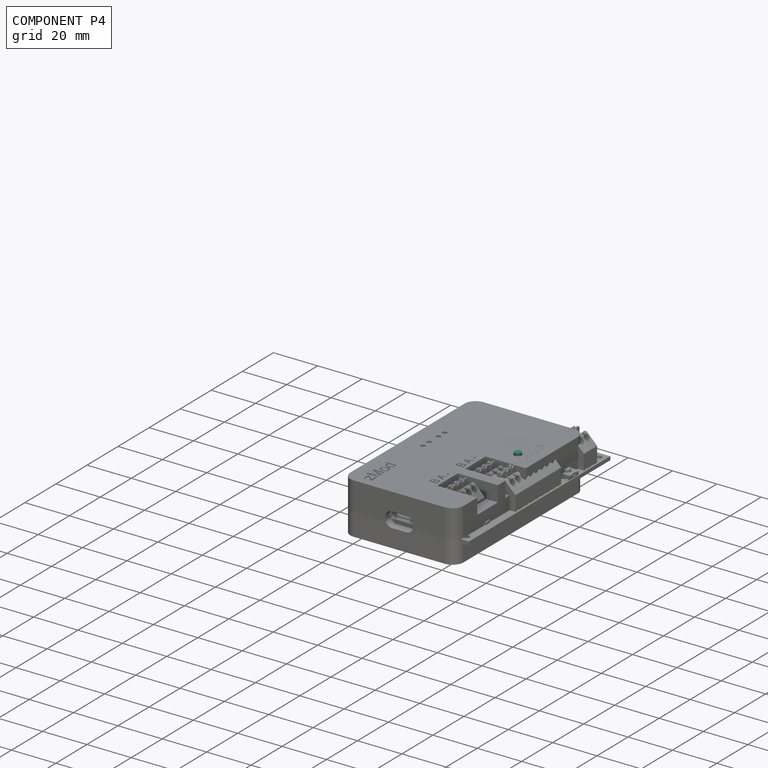
[diagram: component P4 — assembled]
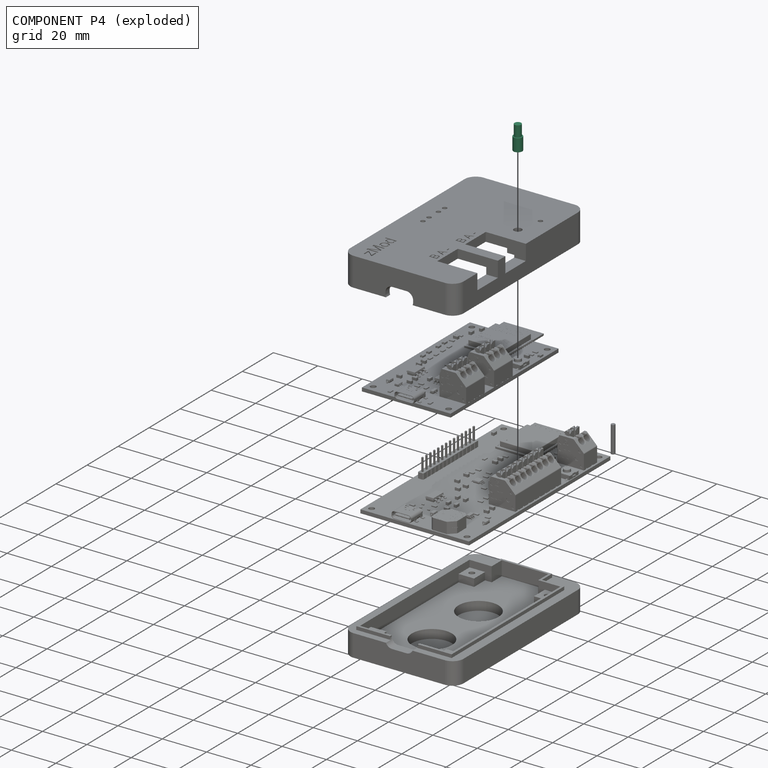
[diagram: component P4 — exploded]
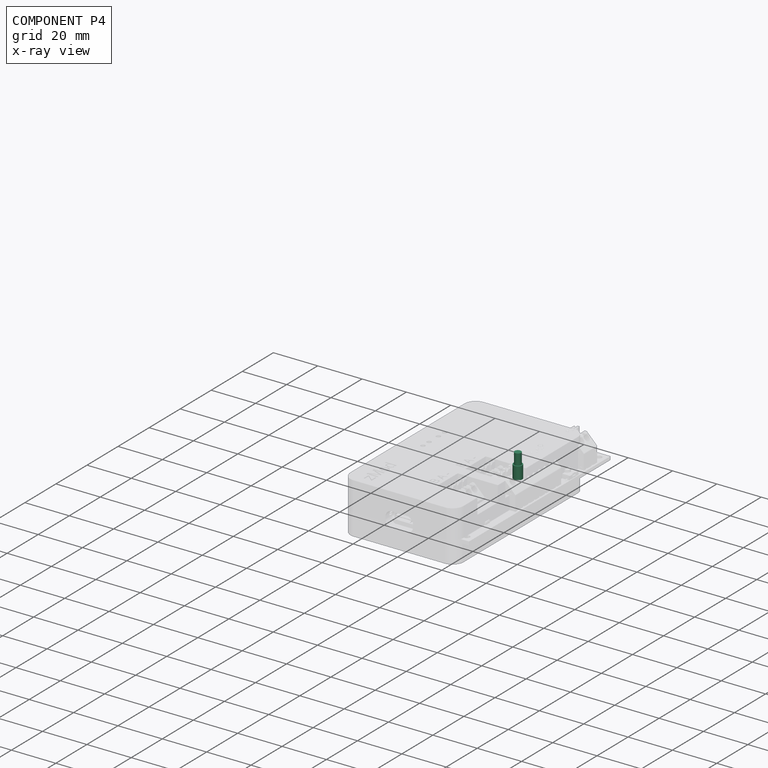
[diagram: component P4 — x-ray view]
COMPONENT P4 — recipe-attached ("Button", modeled in this document).
Held by: resting contact with P0 (derived edge); resting contact with P1 (derived edge); resting contact with P3 (derived edge).
Construction recipe (the document's own serialized feature program — sketch geometry with constraints, then the solid features built on it; lengths are millimeters unless a unit is written):

FEATURE [PartDesign::SubShapeBinder] Binder003
  BindCopyOnChange = 0
  BindMode = 0
  ClaimChildren = false
  Context = -> Body002 [Binder003.]
  Fuse = false
  MakeFace = true
  OffsetFill = false
  OffsetIntersection = false
  OffsetJoinType = 0
  OffsetOpenResult = false
  PartialLoad = false
  Refine = true
  Relative = true
  Support = -> [Body001[Pocket012.Face184]]
  _Version = 2
FEATURE [PartDesign::Plane] DatumPlane002
  AttachmentSupport = -> [Binder003]
  Length = 150.88
  MapMode = 5
  Placement = pos=(0,0,4) rot=(1,0,0;3.14159rad)
  ResizeMode = 0
  Width = 185.865
FEATURE [Sketcher::SketchObject] Sketch018
  ArcFitTolerance = 1e-06
  AttachmentSupport = -> [DatumPlane002]
  ExternalGeometry = -> [Binder003]
  FullyConstrained = true
  MakeInternals = false
  MapMode = 5
  Placement = pos=(0,0,4) rot=(1,0,0;3.14159rad)
  sketch-geometry (1):
    g0: Circle CenterX=96 CenterY=131 CenterZ=0 NormalX=0 NormalY=0 NormalZ=1 AngleXU=0 Radius=2
  constraints (2):
    c: Coincident(g0,g-3)
    c: Diameter(g0) = 4
FEATURE [PartDesign::Pad] Pad005  label="BigD"
  Direction = (0,0,-1)
  Length = 0.75
  Length2 = 5
  Placement = pos=(0,0,4) rot=(1,0,0;3.14159rad)
  Profile = -> Sketch018
  ReferenceAxis = -> Sketch018 [N_Axis]
  Refine = true
  Suppressed = false
  Type = 4
FEATURE [Sketcher::SketchObject] Sketch019
  ArcFitTolerance = 1e-06
  AttachmentSupport = -> [Pad005]
  ExternalGeometry = -> [Pad005]
  FullyConstrained = true
  MakeInternals = false
  MapMode = 5
  Placement = pos=(0,-6e-16,9) rot=(0,0,1;0rad)
  sketch-geometry (1):
    g0: Circle CenterX=96 CenterY=-131 CenterZ=0 NormalX=0 NormalY=0 NormalZ=1 AngleXU=0 Radius=1.5
  constraints (2):
    c: Coincident(g0,g-3)
    c: Diameter(g0) = 3
FEATURE [PartDesign::Pad] Pad006  label="SmallD"
  BaseFeature = -> Pad005
  Direction = (0,0,1)
  Length = 5
  Length2 = 10
  Placement = pos=(0,0,4) rot=(1,0,0;3.14159rad)
  Profile = -> Sketch019
  ReferenceAxis = -> Sketch019 [N_Axis]
  Refine = true
  Suppressed = false
  Type = 0
FEATURE [PartDesign::Body] Body002  label="Button"
  AllowCompound = false
  Group = -> [Binder003,DatumPlane002,Sketch018,Pad005,Sketch019,Pad006]
  Origin = -> Origin088
  Tip = -> Pad006
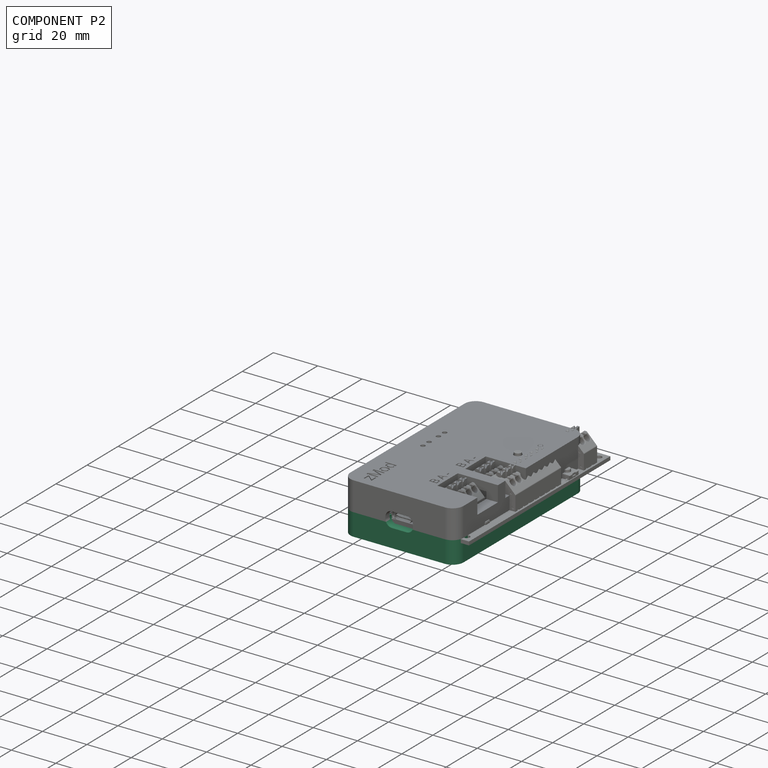
[diagram: component P2 — assembled]
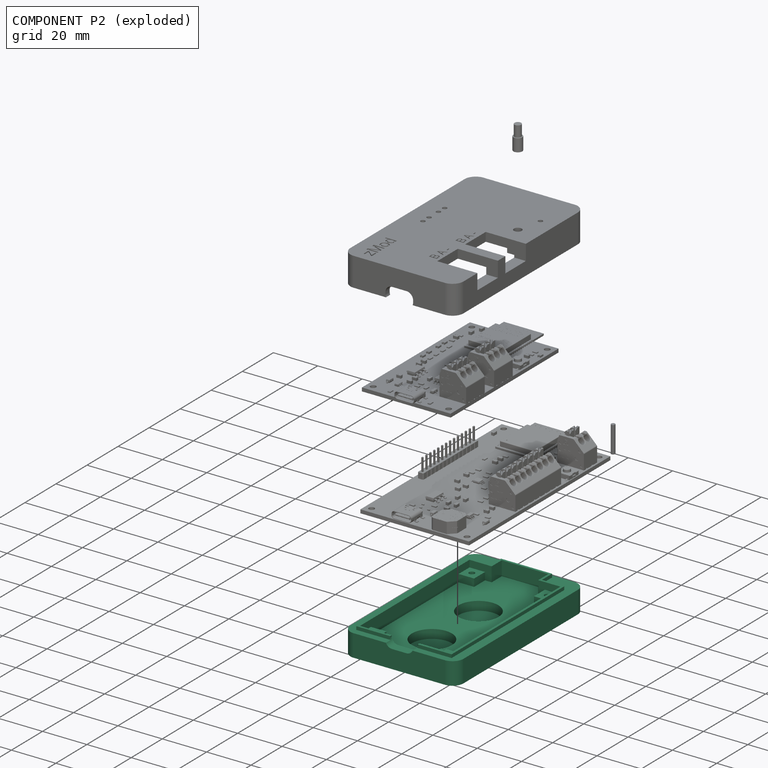
[diagram: component P2 — exploded]
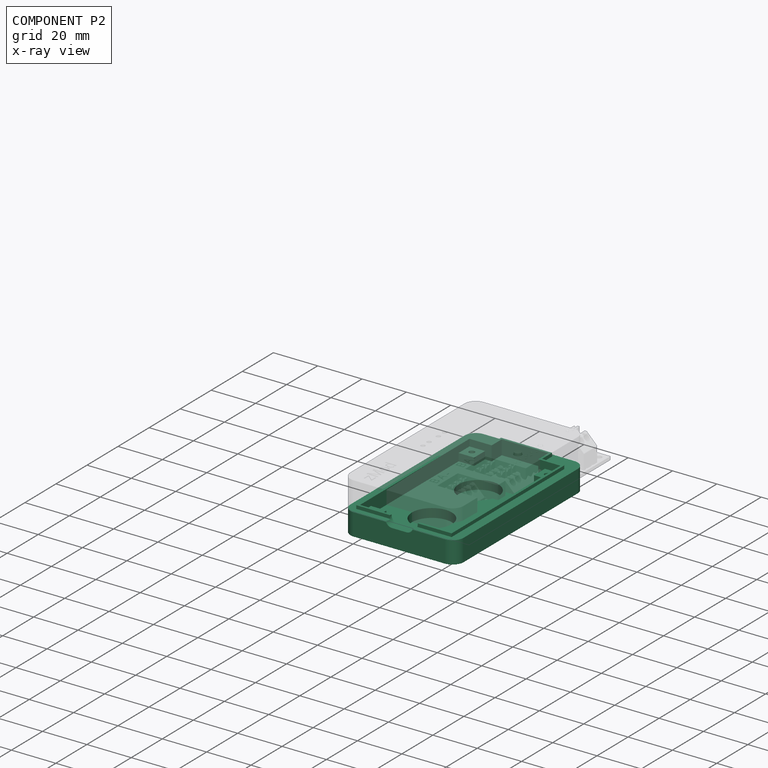
[diagram: component P2 — x-ray view]
COMPONENT P2 — recipe-attached ("Enclosure_bottom", modeled in this document).
Held by: resting contact with P0 (derived edge); resting contact with P1 (derived edge); resting contact with P3 (derived edge).
Construction recipe (the document's own serialized feature program — sketch geometry with constraints, then the solid features built on it; lengths are millimeters unless a unit is written):

FEATURE [PartDesign::SubShapeBinder] Binder002  label="TopOfPCB"
  BindCopyOnChange = 0
  BindMode = 0
  ClaimChildren = false
  Context = -> Body [Binder002.]
  Fuse = false
  MakeFace = true
  OffsetFill = false
  OffsetIntersection = false
  OffsetJoinType = 0
  OffsetOpenResult = false
  PartialLoad = false
  Refine = true
  Relative = true
  Support = -> [Board_7e29[Board_Geoms_7e29.Pcb_7e29.Face17]]
  _Version = 2
FEATURE [PartDesign::Plane] DatumPlane001  label="DatumPlaneTopPCB"
  AttachmentSupport = -> [Binder002]
  Length = 163.569
  MapMode = 5
  ResizeMode = 0
  Width = 242.569
FEATURE [Sketcher::SketchObject] Sketch001
  ArcFitTolerance = 1e-06
  AttachmentSupport = -> [DatumPlane001]
  ExternalGeometry = -> [Binder002]
  FullyConstrained = true
  MakeInternals = false
  MapMode = 5
  expr: Constraints[21] = Spreadsheet.Box_Radius
  expr: Constraints[22] = Spreadsheet.Box_Radius
  expr: Constraints[23] = Spreadsheet.Box_Radius
  expr: Constraints[8] = Spreadsheet.Box_Radius
  sketch-geometry (12):
    g0: LineSegment StartX=54.5 StartY=-106 StartZ=0 EndX=54.5 EndY=-179.5 EndZ=0
    g1: LineSegment StartX=59.5 StartY=-184.5 StartZ=0 EndX=100.5 EndY=-184.5 EndZ=0
    g2: LineSegment StartX=105.5 StartY=-179.5 StartZ=0 EndX=105.5 EndY=-106 EndZ=0
    g3: LineSegment StartX=100.5 StartY=-101 StartZ=0 EndX=59.5 EndY=-101 EndZ=0
    g4: ArcOfCircle CenterX=59.5 CenterY=-106 CenterZ=0 NormalX=0 NormalY=0 NormalZ=1 AngleXU=0 Radius=5 StartAngle=1.5708 EndAngle=3.14159
    g5: GeomPoint [constr] X=54.5 Y=-101 Z=0
    g6: ArcOfCircle CenterX=100.5 CenterY=-106 CenterZ=0 NormalX=0 NormalY=0 NormalZ=1 AngleXU=0 Radius=5 StartAngle=9e-16 EndAngle=1.5708
    g7: GeomPoint [constr] X=105.5 Y=-101 Z=0
    g8: ArcOfCircle CenterX=100.5 CenterY=-179.5 CenterZ=0 NormalX=0 NormalY=0 NormalZ=1 AngleXU=0 Radius=5 StartAngle=4.71239 EndAngle=6.28319
    g9: GeomPoint [constr] X=105.5 Y=-184.5 Z=0
    g10: ArcOfCircle CenterX=59.5 CenterY=-179.5 CenterZ=0 NormalX=0 NormalY=0 NormalZ=1 AngleXU=0 Radius=5 StartAngle=3.14159 EndAngle=4.71239
    g11: GeomPoint [constr] X=54.5 Y=-184.5 Z=0
  constraints (28):
    c: Vertical(g0)
    c: Vertical(g2)
    c: Horizontal(g1)
    c: Horizontal(g3)
    c: PointOnObject(g5,g0)
    c: PointOnObject(g5,g3)
    c: Tangent(g0,g4) = -1.5708
    c: Tangent(g3,g4) = -1.5708
    c: Radius(g4) = 5
    c: PointOnObject(g7,g3)
    c: PointOnObject(g7,g2)
    c: Tangent(g3,g6) = -1.5708
    c: Tangent(g2,g6) = -1.5708
    c: PointOnObject(g9,g1)
    c: PointOnObject(g9,g2)
    c: Tangent(g1,g8) = -1.5708
    c: Tangent(g2,g8) = -1.5708
    c: PointOnObject(g11,g1)
    c: PointOnObject(g11,g0)
    c: Tangent(g1,g10) = -1.5708
    c: Tangent(g0,g10) = -1.5708
    c: Radius(g6) = 5
    c: Radius(g8) = 5
    c: Radius(g10) = 5
    c: Distance(g2,g-3) = 5.5
    c: Distance(g1,g-4) = 4.5
    c: Distance(g0,g-6) = 5.5
    c: Distance(g-5,g3) = 9.5
FEATURE [PartDesign::Pad] Pad  label="Solid Below PCB"
  Direction = (0,0,1)
  Length = 10
  Length2 = 10
  Profile = -> Sketch001
  ReferenceAxis = -> Sketch001 [N_Axis]
  Refine = true
  Reversed = true
  Suppressed = false
  Type = 0
FEATURE [Sketcher::SketchObject] Sketch
  ArcFitTolerance = 1e-06
  AttachmentSupport = -> [DatumPlane001]
  ExternalGeometry = -> [Binder002]
  FullyConstrained = true
  MakeInternals = false
  MapMode = 5
  expr: Constraints[23] = Spreadsheet.Screw_foot_size
  expr: Constraints[24] = Spreadsheet.Screw_foot_size
  expr: Constraints[25] = Spreadsheet.Screw_foot_size
  expr: Constraints[26] = Spreadsheet.Screw_foot_size
  expr: Constraints[27] = Spreadsheet.Screw_foot_size
  expr: Constraints[28] = Spreadsheet.Screw_foot_size
  expr: Constraints[29] = Spreadsheet.Screw_foot_size
  expr: Constraints[30] = Spreadsheet.Screw_foot_size
  expr: Constraints[43] = Spreadsheet.Gap_PCB
  expr: Constraints[44] = Spreadsheet.Gap_PCB
  expr: Constraints[45] = Spreadsheet.Gap_PCB
  expr: Constraints[46] = Spreadsheet.Gap_PCB
  expr: Constraints[47] = Spreadsheet.Gap_PCB
  sketch-geometry (16):
    g0: LineSegment StartX=93.5 StartY=-110 StartZ=0 EndX=93.5 EndY=-117 EndZ=0
    g1: LineSegment StartX=93.5 StartY=-117 StartZ=0 EndX=100.5 EndY=-117 EndZ=0
    g2: LineSegment StartX=100.5 StartY=-117 StartZ=0 EndX=100.5 EndY=-173.5 EndZ=0
    g3: LineSegment StartX=100.5 StartY=-173.5 StartZ=0 EndX=93.5 EndY=-173.5 EndZ=0
    g4: LineSegment StartX=93.5 StartY=-173.5 StartZ=0 EndX=93.5 EndY=-180.5 EndZ=0
    g5: LineSegment StartX=93.5 StartY=-180.5 StartZ=0 EndX=66.5 EndY=-180.5 EndZ=0
    g6: LineSegment StartX=66.5 StartY=-180.5 StartZ=0 EndX=66.5 EndY=-173.5 EndZ=0
    g7: LineSegment StartX=66.5 StartY=-173.5 StartZ=0 EndX=59.5 EndY=-173.5 EndZ=0
    g8: LineSegment StartX=59.5 StartY=-173.5 StartZ=0 EndX=59.5 EndY=-117 EndZ=0
    g9: LineSegment StartX=59.5 StartY=-117 StartZ=0 EndX=66.5 EndY=-117 EndZ=0
    g10: LineSegment StartX=66.5 StartY=-117 StartZ=0 EndX=66.5 EndY=-110 EndZ=0
    g11: LineSegment StartX=66.5 StartY=-110 StartZ=0 EndX=69.5 EndY=-110 EndZ=0
    g12: LineSegment StartX=90.5 StartY=-110 StartZ=0 EndX=93.5 EndY=-110 EndZ=0
    g13: LineSegment StartX=90.5 StartY=-103.5 StartZ=0 EndX=90.5 EndY=-110 EndZ=0
    g14: LineSegment StartX=69.5 StartY=-110 StartZ=0 EndX=69.5 EndY=-103.5 EndZ=0
    g15: LineSegment StartX=69.5 StartY=-103.5 StartZ=0 EndX=90.5 EndY=-103.5 EndZ=0
  constraints (48):
    c: Coincident(g12,g0)
    c: Vertical(g0)
    c: Coincident(g0,g1)
    c: Horizontal(g1)
    c: Coincident(g1,g2)
    c: Vertical(g2)
    c: Coincident(g2,g3)
    c: Horizontal(g3)
    c: Coincident(g3,g4)
    c: Vertical(g4)
    c: Coincident(g4,g5)
    c: Horizontal(g5)
    c: Coincident(g5,g6)
    c: Vertical(g6)
    c: Coincident(g6,g7)
    c: Horizontal(g7)
    c: Coincident(g7,g8)
    c: Vertical(g8)
    c: Coincident(g8,g9)
    c: Horizontal(g9)
    c: Coincident(g9,g10)
    c: Coincident(g10,g11)
    c: Vertical(g10)
    c: DistanceY(g10,g10) = 7
    c: DistanceX(g9,g9) = 7
    c: DistanceY(g0,g0) = 7
    c: DistanceX(g1,g1) = 7
    c: DistanceX(g7,g7) = 7
    c: DistanceY(g6,g6) = 7
    c: DistanceX(g3,g3) = 7
    c: DistanceY(g4,g4) = 7
    c: Coincident(g11,g14)
    c: Horizontal(g11)
    c: Coincident(g13,g12)
    c: Horizontal(g12)
    c: Coincident(g15,g13)
    c: Coincident(g14,g15)
    c: Horizontal(g15)
    c: Vertical(g14)
    c: Vertical(g13)
    c: DistanceX(g11,g11) = 3
    c: DistanceX(g12,g12) = 3
    c: DistanceY(g13,g13) = 6.5
    c: Distance(g5,g-3) = 0.5
    c: Distance(g8,g-4) = 0.5
    c: Distance(g2,g-5) = 0.5
    c: Distance(g-6,g11) = 0.5
    c: Distance(g-6,g12) = 0.5
FEATURE [PartDesign::Pocket] Pocket  label="Recess Principal"
  BaseFeature = -> Pad
  Direction = (0,0,-1)
  Length = 5
  Length2 = 5
  Profile = -> Sketch
  ReferenceAxis = -> Sketch [N_Axis]
  Refine = true
  Suppressed = false
  Type = 0
FEATURE [Sketcher::SketchObject] Sketch002
  ArcFitTolerance = 1e-06
  AttachmentSupport = -> [Pocket]
  ExternalGeometry = -> [Binder002]
  FullyConstrained = true
  MakeInternals = false
  MapMode = 5
  expr: Constraints[10] = Spreadsheet.Gap_PCB
  expr: Constraints[11] = Spreadsheet.Gap_PCB
  expr: Constraints[8] = Spreadsheet.Gap_PCB
  expr: Constraints[9] = Spreadsheet.Gap_PCB
  sketch-geometry (4):
    g0: LineSegment StartX=59.5 StartY=-110 StartZ=0 EndX=59.5 EndY=-180.5 EndZ=0
    g1: LineSegment StartX=59.5 StartY=-180.5 StartZ=0 EndX=100.5 EndY=-180.5 EndZ=0
    g2: LineSegment StartX=100.5 StartY=-180.5 StartZ=0 EndX=100.5 EndY=-110 EndZ=0
    g3: LineSegment StartX=100.5 StartY=-110 StartZ=0 EndX=59.5 EndY=-110 EndZ=0
  constraints (12):
    c: Coincident(g0,g1)
    c: Coincident(g1,g2)
    c: Coincident(g2,g3)
    c: Coincident(g3,g0)
    c: Vertical(g0)
    c: Vertical(g2)
    c: Horizontal(g1)
    c: Horizontal(g3)
    c: Distance(g1,g-3) = 0.5
    c: Distance(g2,g-4) = 0.5
    c: Distance(g3,g-5) = 0.5
    c: Distance(g0,g-6) = 0.5
FEATURE [PartDesign::Pocket] Pocket001  label="Recess screw support"
  BaseFeature = -> Pocket
  Direction = (0,0,-1)
  Length = 1.6
  Length2 = 5
  Profile = -> Sketch002
  ReferenceAxis = -> Sketch002 [N_Axis]
  Refine = true
  Suppressed = false
  Type = 0
FEATURE [Sketcher::SketchObject] Sketch004
  ArcFitTolerance = 1e-06
  AttachmentSupport = -> [DatumPlane001]
  ExternalGeometry = -> [Pocket001]
  FullyConstrained = true
  MakeInternals = false
  MapMode = 5
  expr: Constraints[32] = Spreadsheet.Interlocking_width
  expr: Constraints[33] = Spreadsheet.Interlocking_width
  expr: Constraints[34] = Spreadsheet.Interlocking_width
  expr: Constraints[35] = Spreadsheet.Interlocking_width
  expr: Constraints[36] = Spreadsheet.Interlocking_width
  expr: Constraints[37] = Spreadsheet.Interlocking_width
  expr: Constraints[38] = Spreadsheet.Interlocking_width
  expr: Constraints[39] = Spreadsheet.Interlocking_width
  sketch-geometry (16):
    g0: LineSegment StartX=58.5 StartY=-109 StartZ=0 EndX=68.5 EndY=-109 EndZ=0
    g1: LineSegment StartX=68.5 StartY=-109 StartZ=0 EndX=68.5 EndY=-102.5 EndZ=0
    g2: LineSegment StartX=68.5 StartY=-102.5 StartZ=0 EndX=91.5 EndY=-102.5 EndZ=0
    g3: LineSegment StartX=91.5 StartY=-102.5 StartZ=0 EndX=91.5 EndY=-109 EndZ=0
    g4: LineSegment StartX=91.5 StartY=-109 StartZ=0 EndX=101.5 EndY=-109 EndZ=0
    g5: LineSegment StartX=101.5 StartY=-109 StartZ=0 EndX=101.5 EndY=-181.5 EndZ=0
    g6: LineSegment StartX=101.5 StartY=-181.5 StartZ=0 EndX=58.5 EndY=-181.5 EndZ=0
    g7: LineSegment StartX=58.5 StartY=-181.5 StartZ=0 EndX=58.5 EndY=-109 EndZ=0
    g8: LineSegment StartX=59.5 StartY=-180.5 StartZ=0 EndX=100.5 EndY=-180.5 EndZ=0
    g9: LineSegment StartX=100.5 StartY=-180.5 StartZ=0 EndX=100.5 EndY=-110 EndZ=0
    g10: LineSegment StartX=100.5 StartY=-110 StartZ=0 EndX=90.5 EndY=-110 EndZ=0
    g11: LineSegment StartX=90.5 StartY=-110 StartZ=0 EndX=90.5 EndY=-103.5 EndZ=0
    g12: LineSegment StartX=90.5 StartY=-103.5 StartZ=0 EndX=69.5 EndY=-103.5 EndZ=0
    g13: LineSegment StartX=69.5 StartY=-103.5 StartZ=0 EndX=69.5 EndY=-110 EndZ=0
    g14: LineSegment StartX=69.5 StartY=-110 StartZ=0 EndX=59.5 EndY=-110 EndZ=0
    g15: LineSegment StartX=59.5 StartY=-110 StartZ=0 EndX=59.5 EndY=-180.5 EndZ=0
  constraints (40):
    c: Horizontal(g0)
    c: Coincident(g0,g1)
    c: Vertical(g1)
    c: Coincident(g1,g2)
    c: Horizontal(g2)
    c: Coincident(g2,g3)
    c: Vertical(g3)
    c: Coincident(g3,g4)
    c: Horizontal(g4)
    c: Coincident(g4,g5)
    c: Vertical(g5)
    c: Coincident(g5,g6)
    c: Horizontal(g6)
    c: Coincident(g6,g7)
    c: Coincident(g7,g0)
    c: Vertical(g7)
    c: Coincident(g-10,g8)
    c: Coincident(g8,g-10)
    c: Coincident(g8,g9)
    c: Coincident(g9,g-9)
    c: Coincident(g9,g10)
    c: Coincident(g10,g-8)
    c: Coincident(g10,g11)
    c: Coincident(g11,g-7)
    c: Coincident(g11,g12)
    c: Coincident(g12,g-6)
    c: Coincident(g12,g13)
    c: Coincident(g13,g-5)
    c: Coincident(g13,g14)
    c: Coincident(g14,g-4)
    c: Coincident(g14,g15)
    c: Coincident(g15,g8)
    c: Distance(g2,g12) = 1
    c: Distance(g3,g11) = 1
    c: Distance(g4,g10) = 1
    c: Distance(g5,g9) = 1
    c: Distance(g1,g13) = 1
    c: Distance(g0,g14) = 1
    c: Distance(g7,g15) = 1
    c: Distance(g8,g6) = 1
FEATURE [PartDesign::Pad] Pad001  label="Protusion Sup"
  BaseFeature = -> Pocket001
  Direction = (0,0,1)
  Length = 1.5
  Length2 = 10
  Profile = -> Sketch004
  ReferenceAxis = -> Sketch004 [N_Axis]
  Refine = true
  Suppressed = false
  Type = 0
FEATURE [Sketcher::SketchObject] Sketch005
  ArcFitTolerance = 1e-06
  AttachmentSupport = -> [Pad001]
  ExternalGeometry = -> [Binder002]
  FullyConstrained = true
  MakeInternals = false
  MapMode = 5
  Placement = pos=(0,0,-10) rot=(1,0,0;3.14159rad)
  sketch-geometry (7):
    g0: GeomPoint X=63 Y=177 Z=0
    g1: GeomPoint X=63 Y=113.5 Z=0
    g2: GeomPoint X=97 Y=113.5 Z=0
    g3: Circle CenterX=63 CenterY=177 CenterZ=0 NormalX=0 NormalY=0 NormalZ=1 AngleXU=0 Radius=1.25
    g4: Circle CenterX=63 CenterY=113.5 CenterZ=0 NormalX=0 NormalY=0 NormalZ=1 AngleXU=0 Radius=1.25
    g5: Circle CenterX=97 CenterY=113.5 CenterZ=0 NormalX=0 NormalY=0 NormalZ=1 AngleXU=0 Radius=1.25
    g6: Circle CenterX=97 CenterY=177 CenterZ=0 NormalX=0 NormalY=0 NormalZ=1 AngleXU=0 Radius=1.25
  constraints (11):
    c: Diameter(g3) = 2.5
    c: Diameter(g4) = 2.5
    c: Diameter(g5) = 2.5
    c: Coincident(g6,g-6)
    c: Diameter(g6) = 2.5
    c: Coincident(g0,g-5)
    c: Coincident(g3,g0)
    c: Coincident(g2,g-4)
    c: Coincident(g5,g2)
    c: Coincident(g1,g-3)
    c: Coincident(g4,g1)
FEATURE [PartDesign::Hole] Hole
  BaseFeature = -> Pad001
  CustomThreadClearance = 0
  Depth = 245.039
  DepthType = 1
  Diameter = 2.5
  DrillForDepth = false
  DrillPoint = 1
  DrillPointAngle = 118
  HoleCutCountersinkAngle = 90
  HoleCutCustomValues = false
  HoleCutDepth = 0
  HoleCutDiameter = 3.8
  HoleCutType = 2
  ModelThread = false
  Profile = -> Sketch005
  Refine = true
  Suppressed = false
  Tapered = false
  TaperedAngle = 90
  ThreadClass = 0
  ThreadDepth = 245.039
  ThreadDepthType = 0
  ThreadDirection = 0
  ThreadFit = 0
  ThreadSize = 0
  ThreadType = 0
  Threaded = false
  UseCustomThreadClearance = false
FEATURE [Sketcher::SketchObject] Sketch015
  ArcFitTolerance = 1e-06
  AttachmentSupport = -> [Hole]
  ExternalGeometry = -> [Hole]
  FullyConstrained = true
  MakeInternals = false
  MapMode = 5
  Placement = pos=(0,-184.5,0) rot=(1,0,0;1.5708rad)
  expr: Constraints[6] = 17.6 + 1.65
  sketch-geometry (8):
    g0: LineSegment StartX=76.75 StartY=-1.8 StartZ=0 EndX=83.25 EndY=-1.8 EndZ=0
    g1: LineSegment StartX=86.25 StartY=1.2 StartZ=0 EndX=86.25 EndY=6.5 EndZ=0
    g2: LineSegment StartX=86.25 StartY=6.5 StartZ=0 EndX=73.75 EndY=6.5 EndZ=0
    g3: LineSegment StartX=73.75 StartY=6.5 StartZ=0 EndX=73.75 EndY=1.2 EndZ=0
    g4: ArcOfCircle CenterX=76.75 CenterY=1.2 CenterZ=0 NormalX=0 NormalY=0 NormalZ=1 AngleXU=0 Radius=3 StartAngle=3.14159 EndAngle=4.71239
    g5: GeomPoint [constr] X=73.75 Y=-1.8 Z=0
    g6: ArcOfCircle CenterX=83.25 CenterY=1.2 CenterZ=0 NormalX=0 NormalY=0 NormalZ=1 AngleXU=0 Radius=3 StartAngle=4.71239 EndAngle=6.28319
    g7: GeomPoint [constr] X=86.25 Y=-1.8 Z=0
  constraints (20):
    c: Coincident(g1,g2)
    c: Coincident(g2,g3)
    c: Horizontal(g0)
    c: Horizontal(g2)
    c: Vertical(g1)
    c: Vertical(g3)
    c: Distance(g-3,g3) = 19.25
    c: DistanceX(g2,g2) = 12.5
    c: PointOnObject(g5,g0)
    c: PointOnObject(g5,g3)
    c: Tangent(g0,g4) = -1.5708
    c: Tangent(g3,g4) = -1.5708
    c: PointOnObject(g7,g0)
    c: PointOnObject(g7,g1)
    c: Tangent(g0,g6) = -1.5708
    c: Tangent(g1,g6) = -1.5708
    c: Radius(g4) = 3
    c: Radius(g6) = 3
    c: Distance(g0,g-4) = 1.8
    c: Distance(g1,g2) = 5.3
FEATURE [PartDesign::Pocket] Pocket006  label="RecessUSB"
  BaseFeature = -> Hole
  Direction = (0,1,-2e-16)
  Length = 10
  Length2 = 5
  Profile = -> Sketch015
  ReferenceAxis = -> Sketch015 [N_Axis]
  Refine = true
  Suppressed = false
  Type = 0
FEATURE [Sketcher::SketchObject] Sketch026
  ArcFitTolerance = 1e-06
  AttachmentSupport = -> [Pocket006]
  ExternalGeometry = -> [Pocket006]
  FullyConstrained = true
  MakeInternals = false
  MapMode = 5
  Placement = pos=(0,0,-5) rot=(0,0,1;0rad)
  sketch-geometry (2):
    g0: Circle CenterX=80 CenterY=-133.5 CenterZ=0 NormalX=0 NormalY=0 NormalZ=1 AngleXU=0 Radius=9
    g1: Circle CenterX=80 CenterY=-163.5 CenterZ=0 NormalX=0 NormalY=0 NormalZ=1 AngleXU=0 Radius=9
  constraints (6):
    c: Diameter(g0) = 18
    c: Diameter(g1) = 18
    c: Vertical(g0,g1)
    c: Distance(g0,g-5) = 20.5
    c: DistanceY(g1,g0) = 30
    c: Distance(g0,g-4) = 30
FEATURE [PartDesign::Pocket] Pocket013  label="Magnet recess"
  BaseFeature = -> Pocket006
  Direction = (0,0,-1)
  Length = 4
  Length2 = 5
  Profile = -> Sketch026
  ReferenceAxis = -> Sketch026 [N_Axis]
  Refine = true
  Suppressed = false
  Type = 0
FEATURE [PartDesign::Body] Body  label="Enclosure_bottom"
  AllowCompound = false
  Group = -> [Binder002,DatumPlane001,Sketch001,Pad,Sketch,Pocket,Sketch002,Pocket001,Sketch004,Pad001,Sketch005,Hole,Sketch015,Pocket006,Sketch026,Pocket013]
  Origin = -> Origin086
  Tip = -> Pocket013
PROVENANCE & LICENSES
Assembly and component geometry: a FreeCAD (.FCStd) document from a public repository crawl; components, placements and joints were extracted with FreeCAD and each solid tessellated.
Construction recipes: the document's own serialized feature recipes (and, for linked parts, the recipes of companion documents from the same project).
License: gpl-3.0.
Joints: native FreeCAD joints and A2plus constraints are mapped to standard mate types; edges marked 'derived from contact' connect touching components and are measured from the geometry, not modeled.
Verification: 4 of this assembly's 6 components carry a construction recipe (4 from this document itself); the rest are geometry-only. Every component's tessellation passed the extraction mesh gates (mesh-volume checksum against the B-rep where available, bounding-box inflation <= 2%).
Renders: orthographic iso camera (az 35 / el 25); the floor grid conveys scale (grid pitch printed in each image; no ruler). In the exploded view each component is displaced by its stored offset vector: the offsets alone carry the explosion direction (mate normal/axis signs are not orientation cues and do not encode it), and separation distances are assigned per mate-chain, not proportionally to assembly-order depth.
